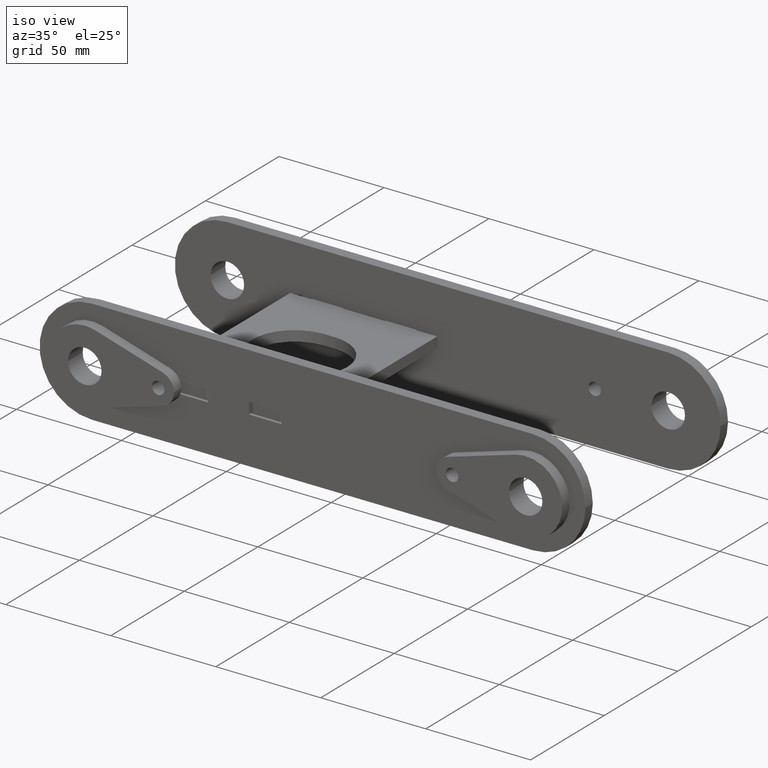
[diagram: clean part render]
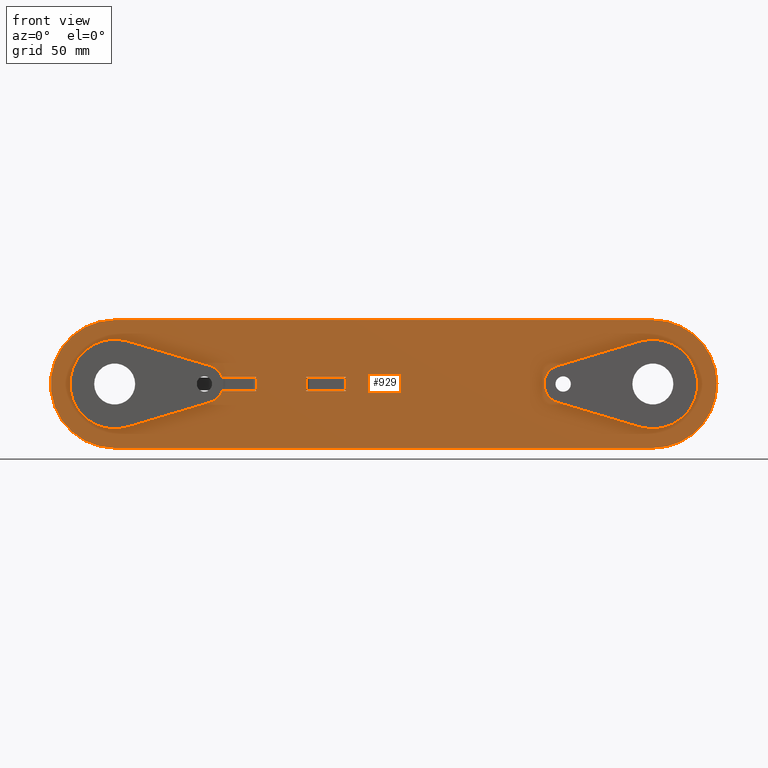
[diagram: tour spotlight — one face highlighted and labeled with its STEP entity id]
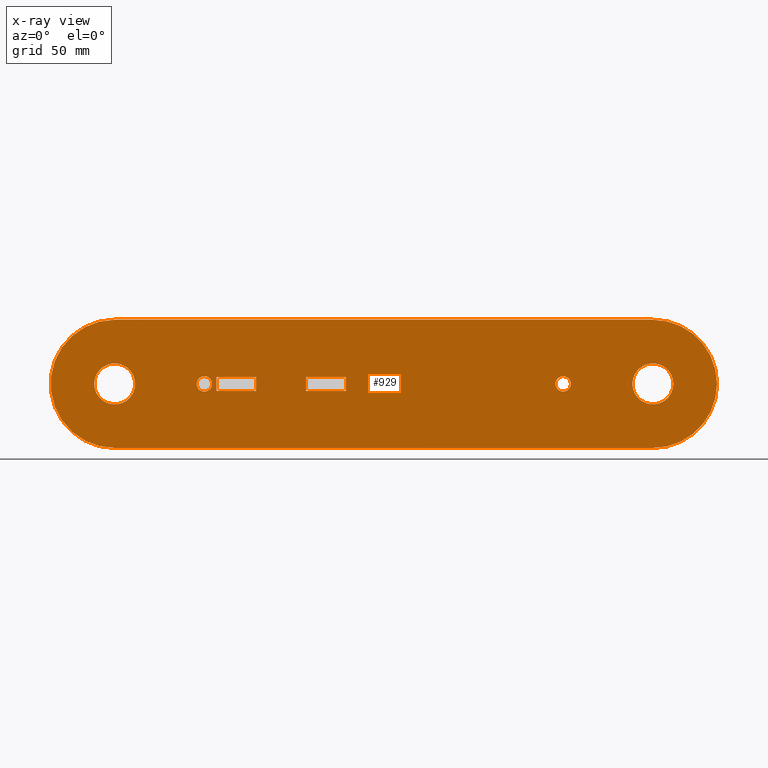
[diagram: x-ray of the same camera — body ghosted, this tour face saturated]
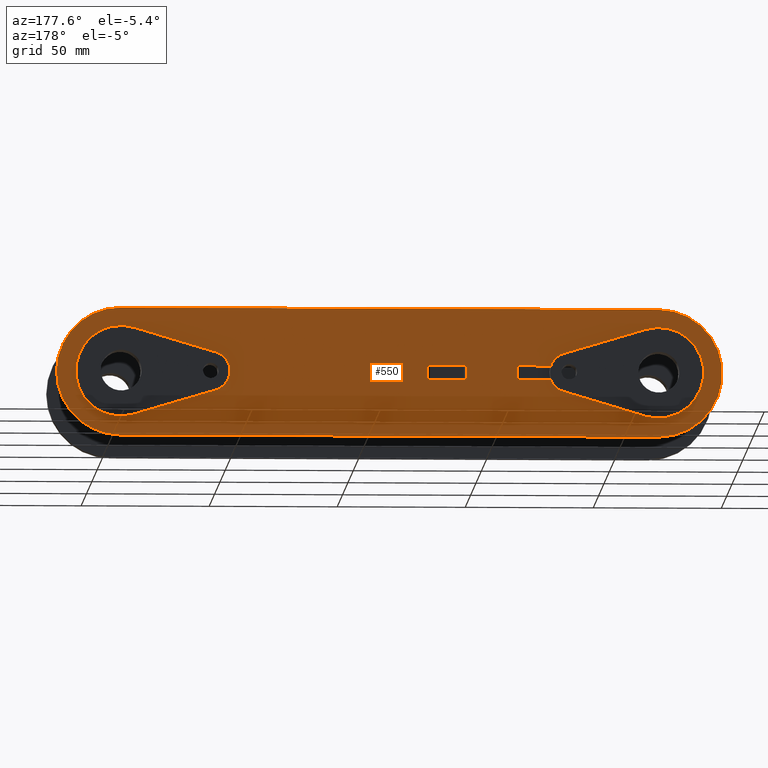
[diagram: tour spotlight — one face highlighted and labeled with its STEP entity id]
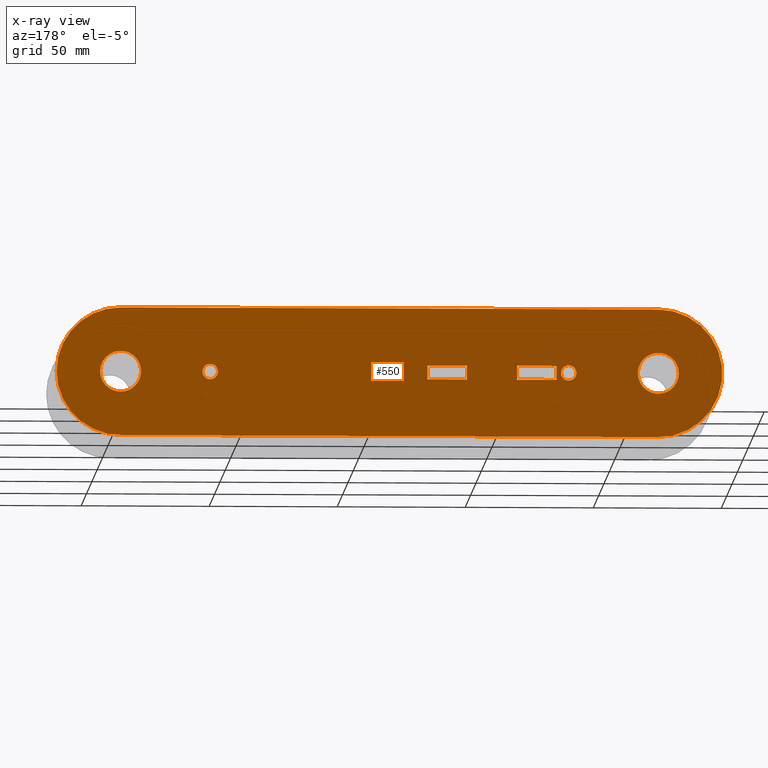
[diagram: x-ray of the same camera — body ghosted, this tour face saturated]
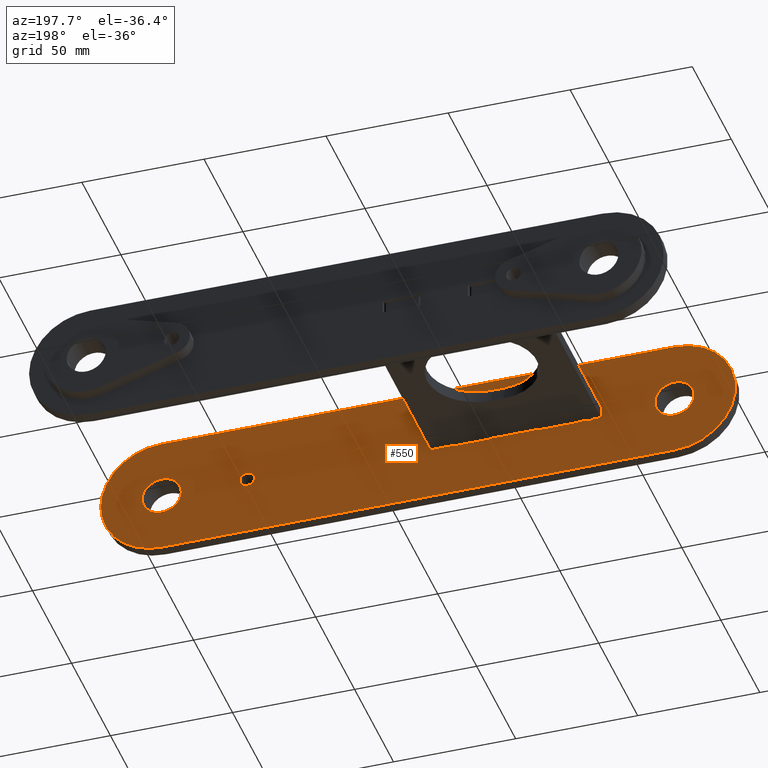
[diagram: tour spotlight — one face highlighted and labeled with its STEP entity id]
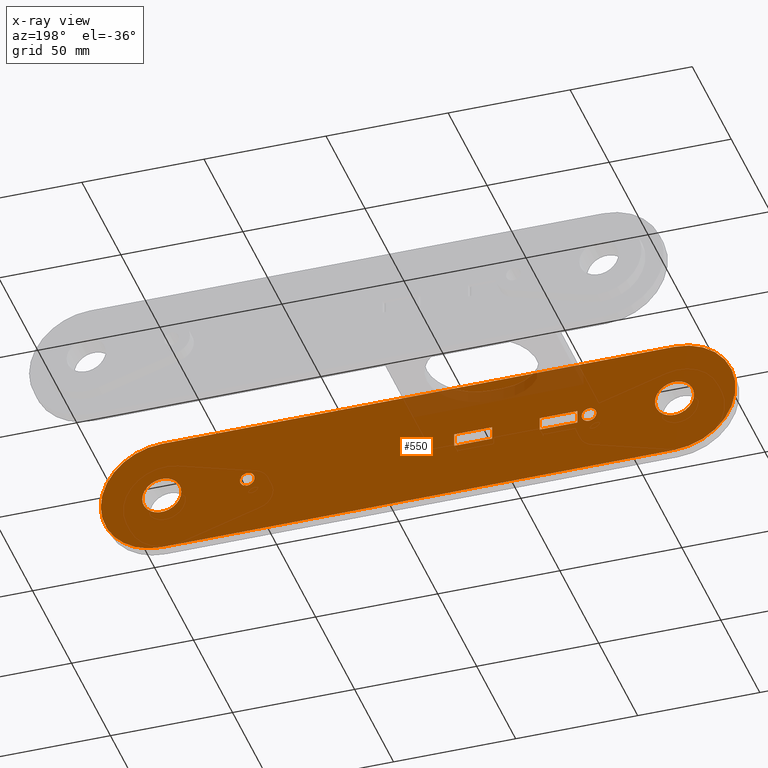
[diagram: x-ray of the same camera — body ghosted, this tour face saturated]
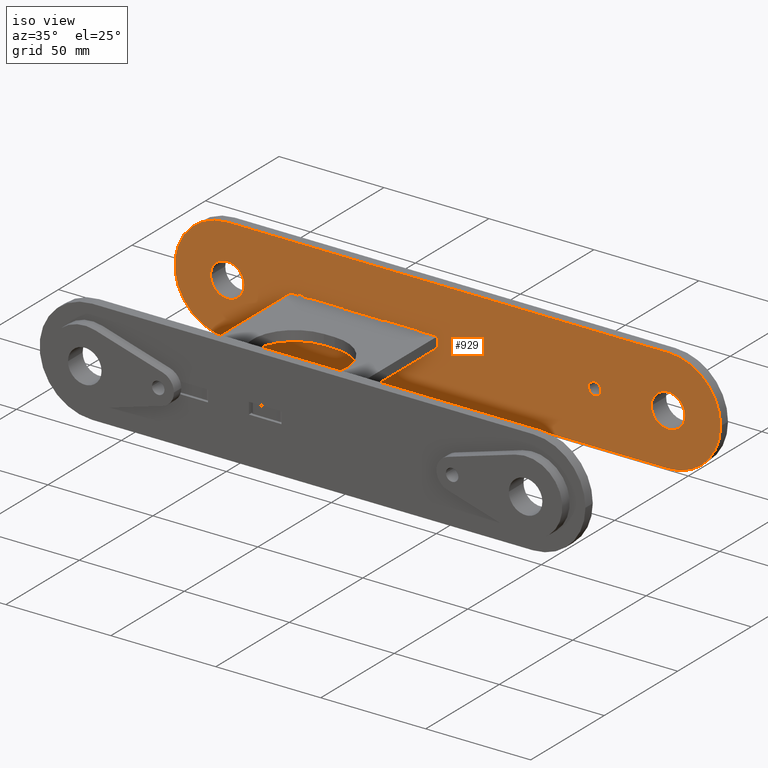
[diagram: tour spotlight — one face highlighted and labeled with its STEP entity id]
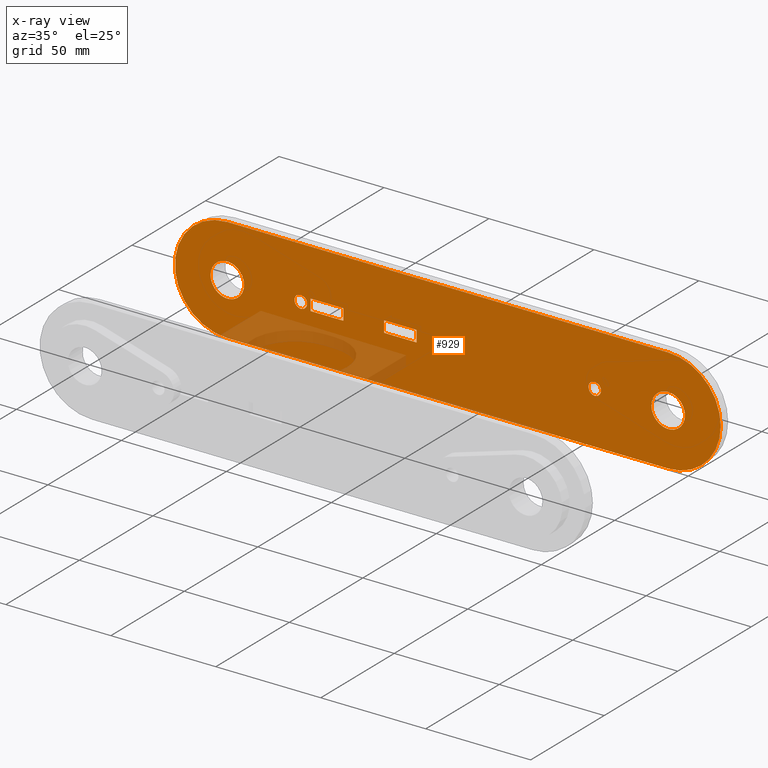
[diagram: x-ray of the same camera — body ghosted, this tour face saturated]
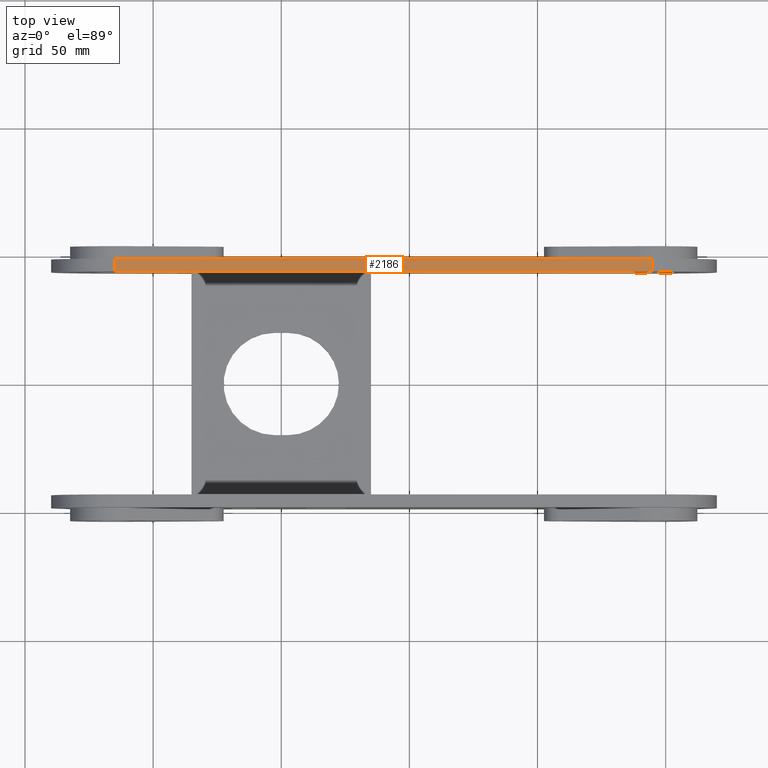
[diagram: tour spotlight — one face highlighted and labeled with its STEP entity id]
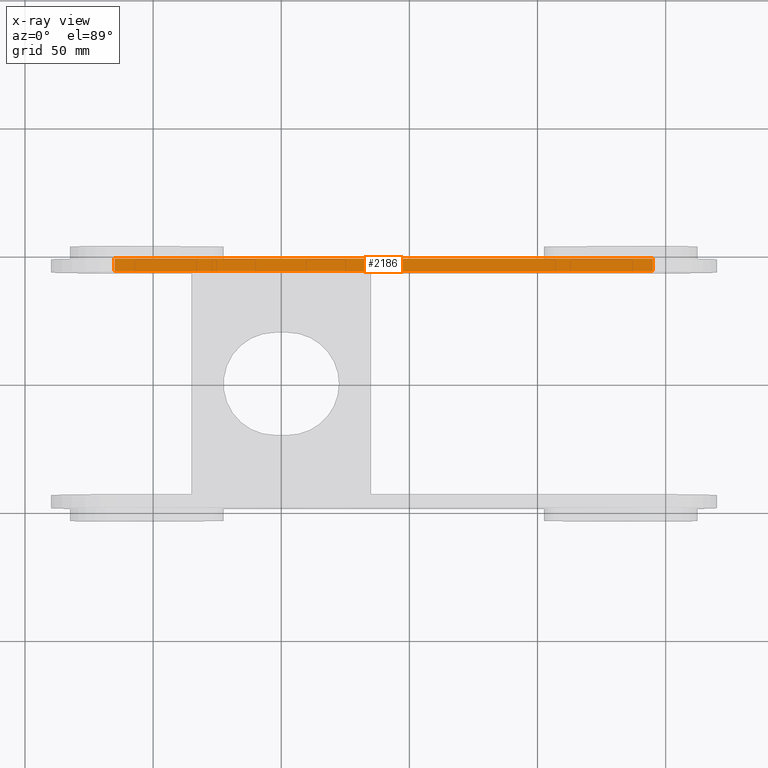
[diagram: x-ray of the same camera — body ghosted, this tour face saturated]
A machine part: a face-by-face anatomy tour. The part has 125 B-rep faces; the first image is the clean iso view, then the 5 largest visible faces are spotlighted one at a time (largest first), each with its STEP entity span.

Face 1 — front view, entity #929. An x-ray twin of the same camera follows (body ghosted, this face saturated) — the face is partly hidden behind the body. In plain terms, the highlighted planar face has unit normal (-0, -1, 0).
Definition (entity closure, byte-faithful):
#12 = CARTESIAN_POINT ( 'NONE',  ( 130.0000000000000284, 3.857637417314161584E-14, 0.000000000000000000 ) ) ;
#58 = EDGE_CURVE ( 'NONE', #2549, #1059, #1194, .T. ) ;
#65 = CIRCLE ( 'NONE', #2447, 8.000000000000007105 ) ;
#104 = DIRECTION ( 'NONE',  ( 1.000000000000000000, 0.000000000000000000, 0.000000000000000000 ) ) ;
#107 = DIRECTION ( 'NONE',  ( 1.000000000000000000, 0.000000000000000000, 0.000000000000000000 ) ) ;
#112 = CARTESIAN_POINT ( 'NONE',  ( -65.29999999999999716, 2.750000000000000888, 0.000000000000000000 ) ) ;
#113 = DIRECTION ( 'NONE',  ( -1.000000000000000000, 2.797941090285172713E-17, -0.000000000000000000 ) ) ;
#123 = VERTEX_POINT ( 'NONE', #845 ) ;
#132 = DIRECTION ( 'NONE',  ( 1.000000000000000000, 0.000000000000000000, 0.000000000000000000 ) ) ;
#141 = CARTESIAN_POINT ( 'NONE',  ( -69.99999999999998579, 0.000000000000000000, 0.000000000000000000 ) ) ;
#144 = CARTESIAN_POINT ( 'NONE',  ( -14.80000000000000071, -2.749999999999998668, 0.000000000000000000 ) ) ;
#147 = VERTEX_POINT ( 'NONE', #1078 ) ;
#163 = LINE ( 'NONE', #144, #1952 ) ;
#167 = CARTESIAN_POINT ( 'NONE',  ( -49.79999999999999716, -2.749999999999998668, 0.000000000000000000 ) ) ;
#176 = PLANE ( 'NONE',  #483 ) ;
#200 = AXIS2_PLACEMENT_3D ( 'NONE', #2119, #1780, #684 ) ;
#207 = CIRCLE ( 'NONE', #2181, 3.000000000000002665 ) ;
#228 = VERTEX_POINT ( 'NONE', #669 ) ;
#229 = EDGE_LOOP ( 'NONE', ( #2703, #1018, #309, #799, #2250 ) ) ;
#235 = EDGE_CURVE ( 'NONE', #948, #1108, #1359, .T. ) ;
#237 = CARTESIAN_POINT ( 'NONE',  ( -30.29999999999999361, -2.749999999999998668, 0.000000000000000000 ) ) ;
#250 = DIRECTION ( 'NONE',  ( -1.000000000000000000, -0.000000000000000000, -0.000000000000000000 ) ) ;
#276 = DIRECTION ( 'NONE',  ( 1.000000000000000000, 0.000000000000000000, 0.000000000000000000 ) ) ;
#279 = CARTESIAN_POINT ( 'NONE',  ( -112.9999999999999858, 9.797174393178845379E-16, 0.000000000000000000 ) ) ;
#309 = ORIENTED_EDGE ( 'NONE', *, *, #235, .T. ) ;
#320 = EDGE_CURVE ( 'NONE', #1489, #656, #795, .T. ) ;
#331 = VERTEX_POINT ( 'NONE', #279 ) ;
#345 = VERTEX_POINT ( 'NONE', #2377 ) ;
#371 = CARTESIAN_POINT ( 'NONE',  ( 104.9999999999999858, 25.00000000000008171, 0.000000000000000000 ) ) ;
#376 = FACE_BOUND ( 'NONE', #2658, .T. ) ;
#388 = CARTESIAN_POINT ( 'NONE',  ( -104.9999999999999858, -25.00000000000004263, 0.000000000000000000 ) ) ;
#396 = EDGE_CURVE ( 'NONE', #1108, #473, #2358, .T. ) ;
#398 = EDGE_CURVE ( 'NONE', #2587, #2549, #2231, .T. ) ;
#434 = AXIS2_PLACEMENT_3D ( 'NONE', #1370, #2029, #104 ) ;
#457 = CARTESIAN_POINT ( 'NONE',  ( -65.29999999999999716, 2.750000000000000888, 0.000000000000000000 ) ) ;
#470 = DIRECTION ( 'NONE',  ( 0.000000000000000000, 0.000000000000000000, 1.000000000000000000 ) ) ;
#473 = VERTEX_POINT ( 'NONE', #371 ) ;
#483 = AXIS2_PLACEMENT_3D ( 'NONE', #1031, #814, #2748 ) ;
#485 = EDGE_CURVE ( 'NONE', #331, #147, #65, .T. ) ;
#486 = DIRECTION ( 'NONE',  ( 0.000000000000000000, 0.000000000000000000, 1.000000000000000000 ) ) ;
#520 = CARTESIAN_POINT ( 'NONE',  ( 96.99999999999997158, 3.955609161245950334E-14, 0.000000000000000000 ) ) ;
#525 = CIRCLE ( 'NONE', #2720, 25.00000000000004974 ) ;
#532 = EDGE_CURVE ( 'NONE', #1732, #1782, #1096, .T. ) ;
#547 = DIRECTION ( 'NONE',  ( 1.000000000000000000, 2.797941090285172713E-17, 0.000000000000000000 ) ) ;
#562 = EDGE_LOOP ( 'NONE', ( #2532, #2045 ) ) ;
#595 = DIRECTION ( 'NONE',  ( -1.000000000000000000, -1.817329355785226926E-16, -0.000000000000000000 ) ) ;
#601 = CARTESIAN_POINT ( 'NONE',  ( 66.99999999999997158, 3.673940397442076138E-16, 0.000000000000000000 ) ) ;
#614 = VECTOR ( 'NONE', #107, 1000.000000000000000 ) ;
#656 = VERTEX_POINT ( 'NONE', #1273 ) ;
#661 = VERTEX_POINT ( 'NONE', #2752 ) ;
#666 = CARTESIAN_POINT ( 'NONE',  ( -65.29999999999999716, -2.749999999999998224, 0.000000000000000000 ) ) ;
#669 = CARTESIAN_POINT ( 'NONE',  ( -104.9999999999999858, 25.00000000000004263, 0.000000000000000000 ) ) ;
#682 = LINE ( 'NONE', #237, #2370 ) ;
#684 = DIRECTION ( 'NONE',  ( 1.000000000000000000, 0.000000000000000000, 0.000000000000000000 ) ) ;
#694 = LINE ( 'NONE', #666, #890 ) ;
#734 = ORIENTED_EDGE ( 'NONE', *, *, #2208, .F. ) ;
#739 = ORIENTED_EDGE ( 'NONE', *, *, #58, .T. ) ;
#757 = AXIS2_PLACEMENT_3D ( 'NONE', #2390, #470, #276 ) ;
#765 = DIRECTION ( 'NONE',  ( 1.000000000000000000, 0.000000000000000000, 0.000000000000000000 ) ) ;
#771 = DIRECTION ( 'NONE',  ( 0.000000000000000000, 0.000000000000000000, 1.000000000000000000 ) ) ;
#781 = EDGE_CURVE ( 'NONE', #1014, #1435, #1579, .T. ) ;
#795 = CIRCLE ( 'NONE', #1504, 3.000000000000002665 ) ;
#799 = ORIENTED_EDGE ( 'NONE', *, *, #396, .T. ) ;
#809 = AXIS2_PLACEMENT_3D ( 'NONE', #1828, #771, #132 ) ;
#814 = DIRECTION ( 'NONE',  ( 0.000000000000000000, 0.000000000000000000, 1.000000000000000000 ) ) ;
#827 = CARTESIAN_POINT ( 'NONE',  ( -69.99999999999998579, 0.000000000000000000, 0.000000000000000000 ) ) ;
#845 = CARTESIAN_POINT ( 'NONE',  ( -65.29999999999999716, -2.749999999999998224, 0.000000000000000000 ) ) ;
#890 = VECTOR ( 'NONE', #2176, 1000.000000000000000 ) ;
#917 = EDGE_CURVE ( 'NONE', #1059, #1324, #163, .T. ) ;
#929 = ADVANCED_FACE ( 'NONE', ( #1876, #985, #1408, #376, #2719, #970, #1890 ), #176, .T. ) ;
#948 = VERTEX_POINT ( 'NONE', #1465 ) ;
#949 = EDGE_CURVE ( 'NONE', #2381, #345, #207, .T. ) ;
#955 = CARTESIAN_POINT ( 'NONE',  ( -72.99999999999998579, 3.673940397442076138E-16, 0.000000000000000000 ) ) ;
#970 = FACE_BOUND ( 'NONE', #2393, .T. ) ;
#985 = FACE_BOUND ( 'NONE', #2744, .T. ) ;
#996 = DIRECTION ( 'NONE',  ( 0.000000000000000000, 0.000000000000000000, 1.000000000000000000 ) ) ;
#999 = CARTESIAN_POINT ( 'NONE',  ( -104.9999999999999858, 0.000000000000000000, 0.000000000000000000 ) ) ;
#1014 = VERTEX_POINT ( 'NONE', #112 ) ;
#1018 = ORIENTED_EDGE ( 'NONE', *, *, #1517, .T. ) ;
#1031 = CARTESIAN_POINT ( 'NONE',  ( -104.9999999999999858, 0.000000000000000000, 0.000000000000000000 ) ) ;
#1038 = ORIENTED_EDGE ( 'NONE', *, *, #2225, .T. ) ;
#1058 = DIRECTION ( 'NONE',  ( 0.000000000000000000, 0.000000000000000000, 1.000000000000000000 ) ) ;
#1059 = VERTEX_POINT ( 'NONE', #2167 ) ;
#1063 = ORIENTED_EDGE ( 'NONE', *, *, #1574, .F. ) ;
#1078 = CARTESIAN_POINT ( 'NONE',  ( -96.99999999999997158, 0.000000000000000000, 0.000000000000000000 ) ) ;
#1096 = CIRCLE ( 'NONE', #434, 8.000000000000007105 ) ;
#1108 = VERTEX_POINT ( 'NONE', #12 ) ;
#1121 = ORIENTED_EDGE ( 'NONE', *, *, #398, .T. ) ;
#1145 = DIRECTION ( 'NONE',  ( 1.000000000000000000, 0.000000000000000000, 0.000000000000000000 ) ) ;
#1157 = CARTESIAN_POINT ( 'NONE',  ( -65.29999999999999716, -2.749999999999998224, 0.000000000000000000 ) ) ;
#1162 = CARTESIAN_POINT ( 'NONE',  ( -30.29999999999999361, -2.749999999999998668, 0.000000000000000000 ) ) ;
#1194 = LINE ( 'NONE', #2463, #614 ) ;
#1238 = VECTOR ( 'NONE', #547, 1000.000000000000000 ) ;
#1240 = DIRECTION ( 'NONE',  ( 1.000000000000000000, 1.817329355785226926E-16, 0.000000000000000000 ) ) ;
#1257 = ORIENTED_EDGE ( 'NONE', *, *, #1586, .T. ) ;
#1273 = CARTESIAN_POINT ( 'NONE',  ( 72.99999999999998579, 0.000000000000000000, 0.000000000000000000 ) ) ;
#1302 = CARTESIAN_POINT ( 'NONE',  ( -49.79999999999999716, -2.749999999999998668, 0.000000000000000000 ) ) ;
#1321 = DIRECTION ( 'NONE',  ( 1.000000000000000000, 0.000000000000000000, 0.000000000000000000 ) ) ;
#1324 = VERTEX_POINT ( 'NONE', #2197 ) ;
#1330 = EDGE_CURVE ( 'NONE', #228, #661, #525, .T. ) ;
#1331 = DIRECTION ( 'NONE',  ( 1.000000000000000000, 0.000000000000000000, 0.000000000000000000 ) ) ;
#1333 = ORIENTED_EDGE ( 'NONE', *, *, #532, .F. ) ;
#1359 = CIRCLE ( 'NONE', #200, 25.00000000000004974 ) ;
#1370 = CARTESIAN_POINT ( 'NONE',  ( 104.9999999999999858, 3.857637417314161584E-14, 0.000000000000000000 ) ) ;
#1408 = FACE_BOUND ( 'NONE', #1844, .T. ) ;
#1431 = CARTESIAN_POINT ( 'NONE',  ( 112.9999999999999858, 3.857637417314161584E-14, 0.000000000000000000 ) ) ;
#1435 = VERTEX_POINT ( 'NONE', #2687 ) ;
#1453 = EDGE_CURVE ( 'NONE', #345, #2381, #1781, .T. ) ;
#1465 = CARTESIAN_POINT ( 'NONE',  ( 104.9999999999999858, -25.00000000000000355, 0.000000000000000000 ) ) ;
#1489 = VERTEX_POINT ( 'NONE', #601 ) ;
#1504 = AXIS2_PLACEMENT_3D ( 'NONE', #2004, #2215, #1145 ) ;
#1517 = EDGE_CURVE ( 'NONE', #661, #948, #2097, .T. ) ;
#1529 = DIRECTION ( 'NONE',  ( -0.000000000000000000, -1.000000000000000000, -0.000000000000000000 ) ) ;
#1574 = EDGE_CURVE ( 'NONE', #656, #1489, #2680, .T. ) ;
#1579 = LINE ( 'NONE', #457, #1238 ) ;
#1586 = EDGE_CURVE ( 'NONE', #123, #1014, #694, .T. ) ;
#1600 = DIRECTION ( 'NONE',  ( 0.000000000000000000, 0.000000000000000000, 1.000000000000000000 ) ) ;
#1603 = DIRECTION ( 'NONE',  ( 0.000000000000000000, 0.000000000000000000, 1.000000000000000000 ) ) ;
#1633 = DIRECTION ( 'NONE',  ( -0.000000000000000000, -1.000000000000000000, -0.000000000000000000 ) ) ;
#1645 = EDGE_CURVE ( 'NONE', #1435, #1859, #1737, .T. ) ;
#1648 = DIRECTION ( 'NONE',  ( 1.000000000000000000, 0.000000000000000000, 0.000000000000000000 ) ) ;
#1651 = VECTOR ( 'NONE', #1240, 1000.000000000000000 ) ;
#1658 = ORIENTED_EDGE ( 'NONE', *, *, #1645, .T. ) ;
#1662 = EDGE_CURVE ( 'NONE', #1324, #2587, #682, .T. ) ;
#1668 = CARTESIAN_POINT ( 'NONE',  ( -104.9999999999999858, 25.00000000000004263, 0.000000000000000000 ) ) ;
#1732 = VERTEX_POINT ( 'NONE', #520 ) ;
#1737 = LINE ( 'NONE', #1302, #2280 ) ;
#1739 = VECTOR ( 'NONE', #113, 1000.000000000000000 ) ;
#1754 = CARTESIAN_POINT ( 'NONE',  ( -104.9999999999999858, 0.000000000000000000, 0.000000000000000000 ) ) ;
#1779 = CIRCLE ( 'NONE', #2142, 8.000000000000007105 ) ;
#1780 = DIRECTION ( 'NONE',  ( 0.000000000000000000, 0.000000000000000000, 1.000000000000000000 ) ) ;
#1781 = CIRCLE ( 'NONE', #1918, 3.000000000000002665 ) ;
#1782 = VERTEX_POINT ( 'NONE', #1431 ) ;
#1817 = DIRECTION ( 'NONE',  ( 1.000000000000000000, 0.000000000000000000, 0.000000000000000000 ) ) ;
#1828 = CARTESIAN_POINT ( 'NONE',  ( 104.9999999999999858, 3.857637417314161584E-14, 0.000000000000000000 ) ) ;
#1844 = EDGE_LOOP ( 'NONE', ( #1257, #1909, #1658, #1038 ) ) ;
#1859 = VERTEX_POINT ( 'NONE', #167 ) ;
#1876 = FACE_BOUND ( 'NONE', #562, .T. ) ;
#1890 = FACE_OUTER_BOUND ( 'NONE', #229, .T. ) ;
#1891 = DIRECTION ( 'NONE',  ( 1.000000000000000000, 0.000000000000000000, 0.000000000000000000 ) ) ;
#1909 = ORIENTED_EDGE ( 'NONE', *, *, #781, .T. ) ;
#1916 = EDGE_CURVE ( 'NONE', #473, #228, #2750, .T. ) ;
#1918 = AXIS2_PLACEMENT_3D ( 'NONE', #141, #996, #765 ) ;
#1952 = VECTOR ( 'NONE', #1633, 1000.000000000000000 ) ;
#1998 = ORIENTED_EDGE ( 'NONE', *, *, #1662, .T. ) ;
#2004 = CARTESIAN_POINT ( 'NONE',  ( 69.99999999999998579, 0.000000000000000000, 0.000000000000000000 ) ) ;
#2029 = DIRECTION ( 'NONE',  ( 0.000000000000000000, 0.000000000000000000, 1.000000000000000000 ) ) ;
#2045 = ORIENTED_EDGE ( 'NONE', *, *, #949, .F. ) ;
#2083 = ORIENTED_EDGE ( 'NONE', *, *, #320, .F. ) ;
#2097 = LINE ( 'NONE', #388, #1651 ) ;
#2119 = CARTESIAN_POINT ( 'NONE',  ( 104.9999999999999858, 3.857637417314161584E-14, 0.000000000000000000 ) ) ;
#2142 = AXIS2_PLACEMENT_3D ( 'NONE', #999, #1058, #1891 ) ;
#2167 = CARTESIAN_POINT ( 'NONE',  ( -14.80000000000000782, 2.750000000000001332, 0.000000000000000000 ) ) ;
#2176 = DIRECTION ( 'NONE',  ( 0.000000000000000000, 1.000000000000000000, 0.000000000000000000 ) ) ;
#2181 = AXIS2_PLACEMENT_3D ( 'NONE', #827, #2704, #1648 ) ;
#2197 = CARTESIAN_POINT ( 'NONE',  ( -14.80000000000000071, -2.749999999999998668, 0.000000000000000000 ) ) ;
#2208 = EDGE_CURVE ( 'NONE', #1782, #1732, #2281, .T. ) ;
#2215 = DIRECTION ( 'NONE',  ( 0.000000000000000000, 0.000000000000000000, 1.000000000000000000 ) ) ;
#2225 = EDGE_CURVE ( 'NONE', #1859, #123, #2241, .T. ) ;
#2231 = LINE ( 'NONE', #1162, #2717 ) ;
#2241 = LINE ( 'NONE', #1157, #1739 ) ;
#2250 = ORIENTED_EDGE ( 'NONE', *, *, #1916, .T. ) ;
#2280 = VECTOR ( 'NONE', #1529, 1000.000000000000000 ) ;
#2281 = CIRCLE ( 'NONE', #809, 8.000000000000007105 ) ;
#2303 = ORIENTED_EDGE ( 'NONE', *, *, #917, .T. ) ;
#2308 = ORIENTED_EDGE ( 'NONE', *, *, #2452, .F. ) ;
#2328 = VECTOR ( 'NONE', #595, 1000.000000000000000 ) ;
#2358 = CIRCLE ( 'NONE', #2668, 25.00000000000004974 ) ;
#2368 = CARTESIAN_POINT ( 'NONE',  ( -30.29999999999999361, -2.749999999999998668, 0.000000000000000000 ) ) ;
#2370 = VECTOR ( 'NONE', #250, 1000.000000000000000 ) ;
#2377 = CARTESIAN_POINT ( 'NONE',  ( -66.99999999999997158, 0.000000000000000000, 0.000000000000000000 ) ) ;
#2381 = VERTEX_POINT ( 'NONE', #955 ) ;
#2384 = CARTESIAN_POINT ( 'NONE',  ( -30.29999999999999361, 2.750000000000001332, 0.000000000000000000 ) ) ;
#2390 = CARTESIAN_POINT ( 'NONE',  ( 69.99999999999998579, 0.000000000000000000, 0.000000000000000000 ) ) ;
#2393 = EDGE_LOOP ( 'NONE', ( #2308, #2749 ) ) ;
#2404 = CARTESIAN_POINT ( 'NONE',  ( 104.9999999999999858, 3.857637417314161584E-14, 0.000000000000000000 ) ) ;
#2447 = AXIS2_PLACEMENT_3D ( 'NONE', #2475, #1600, #1817 ) ;
#2452 = EDGE_CURVE ( 'NONE', #147, #331, #1779, .T. ) ;
#2463 = CARTESIAN_POINT ( 'NONE',  ( -30.29999999999999361, 2.750000000000001332, 0.000000000000000000 ) ) ;
#2475 = CARTESIAN_POINT ( 'NONE',  ( -104.9999999999999858, 0.000000000000000000, 0.000000000000000000 ) ) ;
#2532 = ORIENTED_EDGE ( 'NONE', *, *, #1453, .F. ) ;
#2549 = VERTEX_POINT ( 'NONE', #2384 ) ;
#2587 = VERTEX_POINT ( 'NONE', #2368 ) ;
#2615 = EDGE_LOOP ( 'NONE', ( #734, #1333 ) ) ;
#2658 = EDGE_LOOP ( 'NONE', ( #1121, #739, #2303, #1998 ) ) ;
#2668 = AXIS2_PLACEMENT_3D ( 'NONE', #2404, #486, #1331 ) ;
#2680 = CIRCLE ( 'NONE', #757, 3.000000000000002665 ) ;
#2681 = DIRECTION ( 'NONE',  ( 0.000000000000000000, 1.000000000000000000, 0.000000000000000000 ) ) ;
#2687 = CARTESIAN_POINT ( 'NONE',  ( -49.79999999999999716, 2.750000000000001332, 0.000000000000000000 ) ) ;
#2703 = ORIENTED_EDGE ( 'NONE', *, *, #1330, .T. ) ;
#2704 = DIRECTION ( 'NONE',  ( 0.000000000000000000, 0.000000000000000000, 1.000000000000000000 ) ) ;
#2717 = VECTOR ( 'NONE', #2681, 1000.000000000000000 ) ;
#2719 = FACE_BOUND ( 'NONE', #2615, .T. ) ;
#2720 = AXIS2_PLACEMENT_3D ( 'NONE', #1754, #1603, #1321 ) ;
#2744 = EDGE_LOOP ( 'NONE', ( #1063, #2083 ) ) ;
#2748 = DIRECTION ( 'NONE',  ( 1.000000000000000000, 0.000000000000000000, -0.000000000000000000 ) ) ;
#2749 = ORIENTED_EDGE ( 'NONE', *, *, #485, .F. ) ;
#2750 = LINE ( 'NONE', #1668, #2328 ) ;
#2752 = CARTESIAN_POINT ( 'NONE',  ( -104.9999999999999858, -25.00000000000004263, 0.000000000000000000 ) ) ;

Face 2 — auxiliary view, entity #550. An x-ray twin of the same camera follows (body ghosted, this face saturated) — the face is partly hidden behind the body. In plain terms, the highlighted planar face has unit normal (0, -1, 0).
Definition (entity closure, byte-faithful):
#11 = VERTEX_POINT ( 'NONE', #543 ) ;
#20 = LINE ( 'NONE', #1379, #572 ) ;
#41 = VERTEX_POINT ( 'NONE', #2081 ) ;
#46 = CARTESIAN_POINT ( 'NONE',  ( -104.9999999999999858, 25.00000000000004263, -5.000000000000000000 ) ) ;
#72 = CARTESIAN_POINT ( 'NONE',  ( -49.79999999999999716, -2.749999999999998668, -5.000000000000000000 ) ) ;
#87 = DIRECTION ( 'NONE',  ( 1.000000000000000000, 0.000000000000000000, 0.000000000000000000 ) ) ;
#124 = VECTOR ( 'NONE', #1678, 1000.000000000000000 ) ;
#156 = AXIS2_PLACEMENT_3D ( 'NONE', #1572, #722, #499 ) ;
#161 = VECTOR ( 'NONE', #2593, 1000.000000000000000 ) ;
#171 = VERTEX_POINT ( 'NONE', #860 ) ;
#205 = DIRECTION ( 'NONE',  ( 0.000000000000000000, 0.000000000000000000, 1.000000000000000000 ) ) ;
#223 = DIRECTION ( 'NONE',  ( -0.000000000000000000, -1.000000000000000000, -0.000000000000000000 ) ) ;
#226 = VERTEX_POINT ( 'NONE', #870 ) ;
#236 = DIRECTION ( 'NONE',  ( 0.000000000000000000, 0.000000000000000000, 1.000000000000000000 ) ) ;
#249 = VECTOR ( 'NONE', #2111, 1000.000000000000000 ) ;
#257 = DIRECTION ( 'NONE',  ( 1.000000000000000000, 0.000000000000000000, 0.000000000000000000 ) ) ;
#266 = CARTESIAN_POINT ( 'NONE',  ( 72.99999999999998579, 0.000000000000000000, -5.000000000000000000 ) ) ;
#270 = ORIENTED_EDGE ( 'NONE', *, *, #1885, .F. ) ;
#271 = DIRECTION ( 'NONE',  ( 1.000000000000000000, 0.000000000000000000, 0.000000000000000000 ) ) ;
#300 = EDGE_CURVE ( 'NONE', #633, #1536, #1721, .T. ) ;
#301 = CARTESIAN_POINT ( 'NONE',  ( -104.9999999999999858, -25.00000000000004263, -5.000000000000000000 ) ) ;
#307 = CARTESIAN_POINT ( 'NONE',  ( 96.99999999999997158, 3.955609161245950334E-14, -5.000000000000000000 ) ) ;
#363 = VERTEX_POINT ( 'NONE', #898 ) ;
#380 = CARTESIAN_POINT ( 'NONE',  ( 112.9999999999999858, 3.857637417314161584E-14, -5.000000000000000000 ) ) ;
#401 = CARTESIAN_POINT ( 'NONE',  ( -104.9999999999999858, 0.000000000000000000, -5.000000000000000000 ) ) ;
#443 = EDGE_CURVE ( 'NONE', #363, #900, #2314, .T. ) ;
#452 = CARTESIAN_POINT ( 'NONE',  ( -104.9999999999999858, 0.000000000000000000, -5.000000000000000000 ) ) ;
#489 = DIRECTION ( 'NONE',  ( 0.000000000000000000, 0.000000000000000000, 1.000000000000000000 ) ) ;
#499 = DIRECTION ( 'NONE',  ( 1.000000000000000000, 0.000000000000000000, 0.000000000000000000 ) ) ;
#502 = VERTEX_POINT ( 'NONE', #307 ) ;
#543 = CARTESIAN_POINT ( 'NONE',  ( -65.29999999999999716, -2.749999999999998224, -5.000000000000000000 ) ) ;
#550 = ADVANCED_FACE ( 'NONE', ( #962, #1615, #2258, #2049, #2334, #648, #1883 ), #858, .F. ) ;
#569 = EDGE_LOOP ( 'NONE', ( #2480, #1243 ) ) ;
#572 = VECTOR ( 'NONE', #881, 1000.000000000000000 ) ;
#584 = ORIENTED_EDGE ( 'NONE', *, *, #690, .F. ) ;
#599 = ORIENTED_EDGE ( 'NONE', *, *, #839, .F. ) ;
#618 = DIRECTION ( 'NONE',  ( 0.000000000000000000, 0.000000000000000000, 1.000000000000000000 ) ) ;
#619 = AXIS2_PLACEMENT_3D ( 'NONE', #2161, #236, #87 ) ;
#621 = VERTEX_POINT ( 'NONE', #1251 ) ;
#628 = VECTOR ( 'NONE', #223, 1000.000000000000000 ) ;
#633 = VERTEX_POINT ( 'NONE', #1446 ) ;
#637 = DIRECTION ( 'NONE',  ( 0.000000000000000000, 0.000000000000000000, 1.000000000000000000 ) ) ;
#643 = CARTESIAN_POINT ( 'NONE',  ( -104.9999999999999858, -25.00000000000004263, -5.000000000000000000 ) ) ;
#646 = LINE ( 'NONE', #1919, #124 ) ;
#648 = FACE_BOUND ( 'NONE', #2282, .T. ) ;
#659 = VECTOR ( 'NONE', #680, 1000.000000000000000 ) ;
#668 = AXIS2_PLACEMENT_3D ( 'NONE', #452, #702, #257 ) ;
#680 = DIRECTION ( 'NONE',  ( 0.000000000000000000, 1.000000000000000000, 0.000000000000000000 ) ) ;
#689 = LINE ( 'NONE', #643, #2228 ) ;
#690 = EDGE_CURVE ( 'NONE', #1007, #808, #1396, .T. ) ;
#702 = DIRECTION ( 'NONE',  ( 0.000000000000000000, 0.000000000000000000, 1.000000000000000000 ) ) ;
#704 = EDGE_LOOP ( 'NONE', ( #1969, #584, #1525, #1138 ) ) ;
#722 = DIRECTION ( 'NONE',  ( 0.000000000000000000, 0.000000000000000000, 1.000000000000000000 ) ) ;
#728 = LINE ( 'NONE', #2224, #161 ) ;
#753 = EDGE_CURVE ( 'NONE', #1146, #1007, #728, .T. ) ;
#759 = VECTOR ( 'NONE', #2300, 1000.000000000000000 ) ;
#763 = ORIENTED_EDGE ( 'NONE', *, *, #964, .T. ) ;
#773 = ORIENTED_EDGE ( 'NONE', *, *, #2535, .F. ) ;
#778 = ORIENTED_EDGE ( 'NONE', *, *, #2120, .F. ) ;
#787 = CARTESIAN_POINT ( 'NONE',  ( -49.79999999999999716, 2.750000000000001332, -5.000000000000000000 ) ) ;
#804 = CARTESIAN_POINT ( 'NONE',  ( 104.9999999999999858, 3.857637417314161584E-14, -5.000000000000000000 ) ) ;
#808 = VERTEX_POINT ( 'NONE', #867 ) ;
#837 = CARTESIAN_POINT ( 'NONE',  ( -65.29999999999999716, -2.749999999999998224, -5.000000000000000000 ) ) ;
#839 = EDGE_CURVE ( 'NONE', #900, #226, #1280, .T. ) ;
#844 = EDGE_LOOP ( 'NONE', ( #876, #2039 ) ) ;
#851 = DIRECTION ( 'NONE',  ( -1.000000000000000000, 2.797941090285172713E-17, -0.000000000000000000 ) ) ;
#856 = EDGE_CURVE ( 'NONE', #41, #1839, #20, .T. ) ;
#858 = PLANE ( 'NONE',  #2218 ) ;
#860 = CARTESIAN_POINT ( 'NONE',  ( -14.80000000000000071, 2.750000000000001332, -5.000000000000000000 ) ) ;
#867 = CARTESIAN_POINT ( 'NONE',  ( -30.29999999999999361, 2.750000000000001332, -5.000000000000000000 ) ) ;
#870 = CARTESIAN_POINT ( 'NONE',  ( 104.9999999999999858, 25.00000000000008171, -5.000000000000000000 ) ) ;
#876 = ORIENTED_EDGE ( 'NONE', *, *, #1865, .T. ) ;
#881 = DIRECTION ( 'NONE',  ( 1.000000000000000000, 2.797941090285172713E-17, 0.000000000000000000 ) ) ;
#898 = CARTESIAN_POINT ( 'NONE',  ( 104.9999999999999858, -25.00000000000000355, -5.000000000000000000 ) ) ;
#900 = VERTEX_POINT ( 'NONE', #2100 ) ;
#961 = EDGE_CURVE ( 'NONE', #621, #989, #2450, .T. ) ;
#962 = FACE_BOUND ( 'NONE', #1704, .T. ) ;
#964 = EDGE_CURVE ( 'NONE', #2278, #2772, #1192, .T. ) ;
#984 = ORIENTED_EDGE ( 'NONE', *, *, #856, .F. ) ;
#988 = EDGE_CURVE ( 'NONE', #808, #171, #2497, .T. ) ;
#989 = VERTEX_POINT ( 'NONE', #1427 ) ;
#993 = EDGE_LOOP ( 'NONE', ( #773, #270, #599, #2386, #1932 ) ) ;
#1007 = VERTEX_POINT ( 'NONE', #2512 ) ;
#1022 = AXIS2_PLACEMENT_3D ( 'NONE', #804, #2090, #1261 ) ;
#1066 = CIRCLE ( 'NONE', #1022, 8.000000000000007105 ) ;
#1083 = DIRECTION ( 'NONE',  ( 1.000000000000000000, 1.817329355785226926E-16, 0.000000000000000000 ) ) ;
#1115 = EDGE_CURVE ( 'NONE', #11, #41, #2139, .T. ) ;
#1138 = ORIENTED_EDGE ( 'NONE', *, *, #1845, .F. ) ;
#1146 = VERTEX_POINT ( 'NONE', #2546 ) ;
#1192 = CIRCLE ( 'NONE', #2317, 3.000000000000002665 ) ;
#1243 = ORIENTED_EDGE ( 'NONE', *, *, #300, .T. ) ;
#1244 = CARTESIAN_POINT ( 'NONE',  ( -104.9999999999999858, 0.000000000000000000, -5.000000000000000000 ) ) ;
#1251 = CARTESIAN_POINT ( 'NONE',  ( -96.99999999999997158, 0.000000000000000000, -5.000000000000000000 ) ) ;
#1261 = DIRECTION ( 'NONE',  ( 1.000000000000000000, 0.000000000000000000, 0.000000000000000000 ) ) ;
#1280 = CIRCLE ( 'NONE', #619, 25.00000000000004974 ) ;
#1290 = VERTEX_POINT ( 'NONE', #72 ) ;
#1295 = ORIENTED_EDGE ( 'NONE', *, *, #2515, .T. ) ;
#1299 = CARTESIAN_POINT ( 'NONE',  ( -49.79999999999999716, -2.749999999999998668, -5.000000000000000000 ) ) ;
#1352 = CARTESIAN_POINT ( 'NONE',  ( -66.99999999999997158, 0.000000000000000000, -5.000000000000000000 ) ) ;
#1377 = CIRCLE ( 'NONE', #1823, 3.000000000000002665 ) ;
#1379 = CARTESIAN_POINT ( 'NONE',  ( -65.29999999999999716, 2.750000000000000888, -5.000000000000000000 ) ) ;
#1394 = EDGE_CURVE ( 'NONE', #502, #1994, #1561, .T. ) ;
#1396 = LINE ( 'NONE', #2251, #659 ) ;
#1427 = CARTESIAN_POINT ( 'NONE',  ( -112.9999999999999858, 9.797174393178845379E-16, -5.000000000000000000 ) ) ;
#1446 = CARTESIAN_POINT ( 'NONE',  ( 66.99999999999997158, 3.673940397442076138E-16, -5.000000000000000000 ) ) ;
#1496 = LINE ( 'NONE', #1705, #759 ) ;
#1510 = DIRECTION ( 'NONE',  ( 0.000000000000000000, 0.000000000000000000, 1.000000000000000000 ) ) ;
#1525 = ORIENTED_EDGE ( 'NONE', *, *, #753, .F. ) ;
#1536 = VERTEX_POINT ( 'NONE', #266 ) ;
#1546 = CARTESIAN_POINT ( 'NONE',  ( 104.9999999999999858, 3.857637417314161584E-14, -5.000000000000000000 ) ) ;
#1558 = VECTOR ( 'NONE', #851, 1000.000000000000000 ) ;
#1561 = CIRCLE ( 'NONE', #2509, 8.000000000000007105 ) ;
#1572 = CARTESIAN_POINT ( 'NONE',  ( 69.99999999999998579, 0.000000000000000000, -5.000000000000000000 ) ) ;
#1595 = AXIS2_PLACEMENT_3D ( 'NONE', #2460, #1802, #1643 ) ;
#1615 = FACE_BOUND ( 'NONE', #569, .T. ) ;
#1643 = DIRECTION ( 'NONE',  ( 1.000000000000000000, 0.000000000000000000, 0.000000000000000000 ) ) ;
#1665 = DIRECTION ( 'NONE',  ( 1.000000000000000000, 0.000000000000000000, 0.000000000000000000 ) ) ;
#1676 = DIRECTION ( 'NONE',  ( 0.000000000000000000, 0.000000000000000000, 1.000000000000000000 ) ) ;
#1678 = DIRECTION ( 'NONE',  ( -0.000000000000000000, -1.000000000000000000, -0.000000000000000000 ) ) ;
#1688 = AXIS2_PLACEMENT_3D ( 'NONE', #2123, #205, #2087 ) ;
#1704 = EDGE_LOOP ( 'NONE', ( #763, #1295 ) ) ;
#1705 = CARTESIAN_POINT ( 'NONE',  ( -104.9999999999999858, 25.00000000000004263, -5.000000000000000000 ) ) ;
#1717 = CARTESIAN_POINT ( 'NONE',  ( 69.99999999999998579, 0.000000000000000000, -5.000000000000000000 ) ) ;
#1721 = CIRCLE ( 'NONE', #156, 3.000000000000002665 ) ;
#1734 = DIRECTION ( 'NONE',  ( 0.000000000000000000, 0.000000000000000000, 1.000000000000000000 ) ) ;
#1741 = CIRCLE ( 'NONE', #1688, 8.000000000000007105 ) ;
#1771 = CARTESIAN_POINT ( 'NONE',  ( -72.99999999999998579, 3.673940397442076138E-16, -5.000000000000000000 ) ) ;
#1802 = DIRECTION ( 'NONE',  ( 0.000000000000000000, 0.000000000000000000, 1.000000000000000000 ) ) ;
#1823 = AXIS2_PLACEMENT_3D ( 'NONE', #1717, #1734, #1973 ) ;
#1826 = CARTESIAN_POINT ( 'NONE',  ( -30.29999999999999361, 2.750000000000001332, -5.000000000000000000 ) ) ;
#1839 = VERTEX_POINT ( 'NONE', #787 ) ;
#1845 = EDGE_CURVE ( 'NONE', #171, #1146, #646, .T. ) ;
#1865 = EDGE_CURVE ( 'NONE', #1994, #502, #1066, .T. ) ;
#1871 = AXIS2_PLACEMENT_3D ( 'NONE', #2141, #1510, #2411 ) ;
#1883 = FACE_OUTER_BOUND ( 'NONE', #993, .T. ) ;
#1885 = EDGE_CURVE ( 'NONE', #226, #2110, #1496, .T. ) ;
#1917 = ORIENTED_EDGE ( 'NONE', *, *, #2433, .T. ) ;
#1919 = CARTESIAN_POINT ( 'NONE',  ( -14.80000000000000071, -2.749999999999998668, -5.000000000000000000 ) ) ;
#1922 = DIRECTION ( 'NONE',  ( 1.000000000000000000, 0.000000000000000000, -0.000000000000000000 ) ) ;
#1932 = ORIENTED_EDGE ( 'NONE', *, *, #2561, .F. ) ;
#1969 = ORIENTED_EDGE ( 'NONE', *, *, #988, .F. ) ;
#1973 = DIRECTION ( 'NONE',  ( 1.000000000000000000, 0.000000000000000000, 0.000000000000000000 ) ) ;
#1981 = CARTESIAN_POINT ( 'NONE',  ( -65.29999999999999716, -2.749999999999998224, -5.000000000000000000 ) ) ;
#1994 = VERTEX_POINT ( 'NONE', #380 ) ;
#2039 = ORIENTED_EDGE ( 'NONE', *, *, #1394, .T. ) ;
#2049 = FACE_BOUND ( 'NONE', #704, .T. ) ;
#2081 = CARTESIAN_POINT ( 'NONE',  ( -65.29999999999999716, 2.750000000000000888, -5.000000000000000000 ) ) ;
#2087 = DIRECTION ( 'NONE',  ( 1.000000000000000000, 0.000000000000000000, 0.000000000000000000 ) ) ;
#2090 = DIRECTION ( 'NONE',  ( 0.000000000000000000, 0.000000000000000000, 1.000000000000000000 ) ) ;
#2095 = EDGE_CURVE ( 'NONE', #1536, #633, #1377, .T. ) ;
#2100 = CARTESIAN_POINT ( 'NONE',  ( 130.0000000000000284, 3.857637417314161584E-14, -5.000000000000000000 ) ) ;
#2110 = VERTEX_POINT ( 'NONE', #46 ) ;
#2111 = DIRECTION ( 'NONE',  ( 0.000000000000000000, 1.000000000000000000, 0.000000000000000000 ) ) ;
#2120 = EDGE_CURVE ( 'NONE', #1839, #1290, #2632, .T. ) ;
#2123 = CARTESIAN_POINT ( 'NONE',  ( -104.9999999999999858, 0.000000000000000000, -5.000000000000000000 ) ) ;
#2133 = AXIS2_PLACEMENT_3D ( 'NONE', #1244, #1676, #1665 ) ;
#2139 = LINE ( 'NONE', #837, #249 ) ;
#2141 = CARTESIAN_POINT ( 'NONE',  ( -69.99999999999998579, 0.000000000000000000, -5.000000000000000000 ) ) ;
#2153 = ORIENTED_EDGE ( 'NONE', *, *, #1115, .F. ) ;
#2161 = CARTESIAN_POINT ( 'NONE',  ( 104.9999999999999858, 3.857637417314161584E-14, -5.000000000000000000 ) ) ;
#2198 = LINE ( 'NONE', #1981, #1558 ) ;
#2218 = AXIS2_PLACEMENT_3D ( 'NONE', #401, #637, #1922 ) ;
#2224 = CARTESIAN_POINT ( 'NONE',  ( -30.29999999999999361, -2.749999999999998668, -5.000000000000000000 ) ) ;
#2228 = VECTOR ( 'NONE', #1083, 1000.000000000000000 ) ;
#2251 = CARTESIAN_POINT ( 'NONE',  ( -30.29999999999999361, -2.749999999999998668, -5.000000000000000000 ) ) ;
#2258 = FACE_BOUND ( 'NONE', #2669, .T. ) ;
#2278 = VERTEX_POINT ( 'NONE', #1352 ) ;
#2282 = EDGE_LOOP ( 'NONE', ( #2435, #1917 ) ) ;
#2300 = DIRECTION ( 'NONE',  ( -1.000000000000000000, -1.817329355785226926E-16, -0.000000000000000000 ) ) ;
#2314 = CIRCLE ( 'NONE', #1595, 25.00000000000004974 ) ;
#2317 = AXIS2_PLACEMENT_3D ( 'NONE', #2533, #618, #2523 ) ;
#2320 = ORIENTED_EDGE ( 'NONE', *, *, #2616, .F. ) ;
#2334 = FACE_BOUND ( 'NONE', #844, .T. ) ;
#2349 = VERTEX_POINT ( 'NONE', #301 ) ;
#2386 = ORIENTED_EDGE ( 'NONE', *, *, #443, .F. ) ;
#2407 = VECTOR ( 'NONE', #2481, 1000.000000000000000 ) ;
#2411 = DIRECTION ( 'NONE',  ( 1.000000000000000000, 0.000000000000000000, 0.000000000000000000 ) ) ;
#2433 = EDGE_CURVE ( 'NONE', #989, #621, #1741, .T. ) ;
#2435 = ORIENTED_EDGE ( 'NONE', *, *, #961, .T. ) ;
#2450 = CIRCLE ( 'NONE', #2133, 8.000000000000007105 ) ;
#2457 = CIRCLE ( 'NONE', #668, 25.00000000000004974 ) ;
#2460 = CARTESIAN_POINT ( 'NONE',  ( 104.9999999999999858, 3.857637417314161584E-14, -5.000000000000000000 ) ) ;
#2480 = ORIENTED_EDGE ( 'NONE', *, *, #2095, .T. ) ;
#2481 = DIRECTION ( 'NONE',  ( 1.000000000000000000, 0.000000000000000000, 0.000000000000000000 ) ) ;
#2497 = LINE ( 'NONE', #1826, #2407 ) ;
#2507 = CIRCLE ( 'NONE', #1871, 3.000000000000002665 ) ;
#2509 = AXIS2_PLACEMENT_3D ( 'NONE', #1546, #489, #271 ) ;
#2512 = CARTESIAN_POINT ( 'NONE',  ( -30.29999999999999361, -2.749999999999998668, -5.000000000000000000 ) ) ;
#2515 = EDGE_CURVE ( 'NONE', #2772, #2278, #2507, .T. ) ;
#2523 = DIRECTION ( 'NONE',  ( 1.000000000000000000, 0.000000000000000000, 0.000000000000000000 ) ) ;
#2533 = CARTESIAN_POINT ( 'NONE',  ( -69.99999999999998579, 0.000000000000000000, -5.000000000000000000 ) ) ;
#2535 = EDGE_CURVE ( 'NONE', #2110, #2349, #2457, .T. ) ;
#2546 = CARTESIAN_POINT ( 'NONE',  ( -14.80000000000000071, -2.749999999999998668, -5.000000000000000000 ) ) ;
#2561 = EDGE_CURVE ( 'NONE', #2349, #363, #689, .T. ) ;
#2593 = DIRECTION ( 'NONE',  ( -1.000000000000000000, -0.000000000000000000, -0.000000000000000000 ) ) ;
#2616 = EDGE_CURVE ( 'NONE', #1290, #11, #2198, .T. ) ;
#2632 = LINE ( 'NONE', #1299, #628 ) ;
#2669 = EDGE_LOOP ( 'NONE', ( #984, #2153, #2320, #778 ) ) ;
#2772 = VERTEX_POINT ( 'NONE', #1771 ) ;

Face 3 — auxiliary view, entity #550. An x-ray twin of the same camera follows (body ghosted, this face saturated) — the face is partly hidden behind the body. In plain terms, the highlighted planar face has unit normal (-0, -1, 0).
Definition (entity closure, byte-faithful):
#11 = VERTEX_POINT ( 'NONE', #543 ) ;
#20 = LINE ( 'NONE', #1379, #572 ) ;
#41 = VERTEX_POINT ( 'NONE', #2081 ) ;
#46 = CARTESIAN_POINT ( 'NONE',  ( -104.9999999999999858, 25.00000000000004263, -5.000000000000000000 ) ) ;
#72 = CARTESIAN_POINT ( 'NONE',  ( -49.79999999999999716, -2.749999999999998668, -5.000000000000000000 ) ) ;
#87 = DIRECTION ( 'NONE',  ( 1.000000000000000000, 0.000000000000000000, 0.000000000000000000 ) ) ;
#124 = VECTOR ( 'NONE', #1678, 1000.000000000000000 ) ;
#156 = AXIS2_PLACEMENT_3D ( 'NONE', #1572, #722, #499 ) ;
#161 = VECTOR ( 'NONE', #2593, 1000.000000000000000 ) ;
#171 = VERTEX_POINT ( 'NONE', #860 ) ;
#205 = DIRECTION ( 'NONE',  ( 0.000000000000000000, 0.000000000000000000, 1.000000000000000000 ) ) ;
#223 = DIRECTION ( 'NONE',  ( -0.000000000000000000, -1.000000000000000000, -0.000000000000000000 ) ) ;
#226 = VERTEX_POINT ( 'NONE', #870 ) ;
#236 = DIRECTION ( 'NONE',  ( 0.000000000000000000, 0.000000000000000000, 1.000000000000000000 ) ) ;
#249 = VECTOR ( 'NONE', #2111, 1000.000000000000000 ) ;
#257 = DIRECTION ( 'NONE',  ( 1.000000000000000000, 0.000000000000000000, 0.000000000000000000 ) ) ;
#266 = CARTESIAN_POINT ( 'NONE',  ( 72.99999999999998579, 0.000000000000000000, -5.000000000000000000 ) ) ;
#270 = ORIENTED_EDGE ( 'NONE', *, *, #1885, .F. ) ;
#271 = DIRECTION ( 'NONE',  ( 1.000000000000000000, 0.000000000000000000, 0.000000000000000000 ) ) ;
#300 = EDGE_CURVE ( 'NONE', #633, #1536, #1721, .T. ) ;
#301 = CARTESIAN_POINT ( 'NONE',  ( -104.9999999999999858, -25.00000000000004263, -5.000000000000000000 ) ) ;
#307 = CARTESIAN_POINT ( 'NONE',  ( 96.99999999999997158, 3.955609161245950334E-14, -5.000000000000000000 ) ) ;
#363 = VERTEX_POINT ( 'NONE', #898 ) ;
#380 = CARTESIAN_POINT ( 'NONE',  ( 112.9999999999999858, 3.857637417314161584E-14, -5.000000000000000000 ) ) ;
#401 = CARTESIAN_POINT ( 'NONE',  ( -104.9999999999999858, 0.000000000000000000, -5.000000000000000000 ) ) ;
#443 = EDGE_CURVE ( 'NONE', #363, #900, #2314, .T. ) ;
#452 = CARTESIAN_POINT ( 'NONE',  ( -104.9999999999999858, 0.000000000000000000, -5.000000000000000000 ) ) ;
#489 = DIRECTION ( 'NONE',  ( 0.000000000000000000, 0.000000000000000000, 1.000000000000000000 ) ) ;
#499 = DIRECTION ( 'NONE',  ( 1.000000000000000000, 0.000000000000000000, 0.000000000000000000 ) ) ;
#502 = VERTEX_POINT ( 'NONE', #307 ) ;
#543 = CARTESIAN_POINT ( 'NONE',  ( -65.29999999999999716, -2.749999999999998224, -5.000000000000000000 ) ) ;
#550 = ADVANCED_FACE ( 'NONE', ( #962, #1615, #2258, #2049, #2334, #648, #1883 ), #858, .F. ) ;
#569 = EDGE_LOOP ( 'NONE', ( #2480, #1243 ) ) ;
#572 = VECTOR ( 'NONE', #881, 1000.000000000000000 ) ;
#584 = ORIENTED_EDGE ( 'NONE', *, *, #690, .F. ) ;
#599 = ORIENTED_EDGE ( 'NONE', *, *, #839, .F. ) ;
#618 = DIRECTION ( 'NONE',  ( 0.000000000000000000, 0.000000000000000000, 1.000000000000000000 ) ) ;
#619 = AXIS2_PLACEMENT_3D ( 'NONE', #2161, #236, #87 ) ;
#621 = VERTEX_POINT ( 'NONE', #1251 ) ;
#628 = VECTOR ( 'NONE', #223, 1000.000000000000000 ) ;
#633 = VERTEX_POINT ( 'NONE', #1446 ) ;
#637 = DIRECTION ( 'NONE',  ( 0.000000000000000000, 0.000000000000000000, 1.000000000000000000 ) ) ;
#643 = CARTESIAN_POINT ( 'NONE',  ( -104.9999999999999858, -25.00000000000004263, -5.000000000000000000 ) ) ;
#646 = LINE ( 'NONE', #1919, #124 ) ;
#648 = FACE_BOUND ( 'NONE', #2282, .T. ) ;
#659 = VECTOR ( 'NONE', #680, 1000.000000000000000 ) ;
#668 = AXIS2_PLACEMENT_3D ( 'NONE', #452, #702, #257 ) ;
#680 = DIRECTION ( 'NONE',  ( 0.000000000000000000, 1.000000000000000000, 0.000000000000000000 ) ) ;
#689 = LINE ( 'NONE', #643, #2228 ) ;
#690 = EDGE_CURVE ( 'NONE', #1007, #808, #1396, .T. ) ;
#702 = DIRECTION ( 'NONE',  ( 0.000000000000000000, 0.000000000000000000, 1.000000000000000000 ) ) ;
#704 = EDGE_LOOP ( 'NONE', ( #1969, #584, #1525, #1138 ) ) ;
#722 = DIRECTION ( 'NONE',  ( 0.000000000000000000, 0.000000000000000000, 1.000000000000000000 ) ) ;
#728 = LINE ( 'NONE', #2224, #161 ) ;
#753 = EDGE_CURVE ( 'NONE', #1146, #1007, #728, .T. ) ;
#759 = VECTOR ( 'NONE', #2300, 1000.000000000000000 ) ;
#763 = ORIENTED_EDGE ( 'NONE', *, *, #964, .T. ) ;
#773 = ORIENTED_EDGE ( 'NONE', *, *, #2535, .F. ) ;
#778 = ORIENTED_EDGE ( 'NONE', *, *, #2120, .F. ) ;
#787 = CARTESIAN_POINT ( 'NONE',  ( -49.79999999999999716, 2.750000000000001332, -5.000000000000000000 ) ) ;
#804 = CARTESIAN_POINT ( 'NONE',  ( 104.9999999999999858, 3.857637417314161584E-14, -5.000000000000000000 ) ) ;
#808 = VERTEX_POINT ( 'NONE', #867 ) ;
#837 = CARTESIAN_POINT ( 'NONE',  ( -65.29999999999999716, -2.749999999999998224, -5.000000000000000000 ) ) ;
#839 = EDGE_CURVE ( 'NONE', #900, #226, #1280, .T. ) ;
#844 = EDGE_LOOP ( 'NONE', ( #876, #2039 ) ) ;
#851 = DIRECTION ( 'NONE',  ( -1.000000000000000000, 2.797941090285172713E-17, -0.000000000000000000 ) ) ;
#856 = EDGE_CURVE ( 'NONE', #41, #1839, #20, .T. ) ;
#858 = PLANE ( 'NONE',  #2218 ) ;
#860 = CARTESIAN_POINT ( 'NONE',  ( -14.80000000000000071, 2.750000000000001332, -5.000000000000000000 ) ) ;
#867 = CARTESIAN_POINT ( 'NONE',  ( -30.29999999999999361, 2.750000000000001332, -5.000000000000000000 ) ) ;
#870 = CARTESIAN_POINT ( 'NONE',  ( 104.9999999999999858, 25.00000000000008171, -5.000000000000000000 ) ) ;
#876 = ORIENTED_EDGE ( 'NONE', *, *, #1865, .T. ) ;
#881 = DIRECTION ( 'NONE',  ( 1.000000000000000000, 2.797941090285172713E-17, 0.000000000000000000 ) ) ;
#898 = CARTESIAN_POINT ( 'NONE',  ( 104.9999999999999858, -25.00000000000000355, -5.000000000000000000 ) ) ;
#900 = VERTEX_POINT ( 'NONE', #2100 ) ;
#961 = EDGE_CURVE ( 'NONE', #621, #989, #2450, .T. ) ;
#962 = FACE_BOUND ( 'NONE', #1704, .T. ) ;
#964 = EDGE_CURVE ( 'NONE', #2278, #2772, #1192, .T. ) ;
#984 = ORIENTED_EDGE ( 'NONE', *, *, #856, .F. ) ;
#988 = EDGE_CURVE ( 'NONE', #808, #171, #2497, .T. ) ;
#989 = VERTEX_POINT ( 'NONE', #1427 ) ;
#993 = EDGE_LOOP ( 'NONE', ( #773, #270, #599, #2386, #1932 ) ) ;
#1007 = VERTEX_POINT ( 'NONE', #2512 ) ;
#1022 = AXIS2_PLACEMENT_3D ( 'NONE', #804, #2090, #1261 ) ;
#1066 = CIRCLE ( 'NONE', #1022, 8.000000000000007105 ) ;
#1083 = DIRECTION ( 'NONE',  ( 1.000000000000000000, 1.817329355785226926E-16, 0.000000000000000000 ) ) ;
#1115 = EDGE_CURVE ( 'NONE', #11, #41, #2139, .T. ) ;
#1138 = ORIENTED_EDGE ( 'NONE', *, *, #1845, .F. ) ;
#1146 = VERTEX_POINT ( 'NONE', #2546 ) ;
#1192 = CIRCLE ( 'NONE', #2317, 3.000000000000002665 ) ;
#1243 = ORIENTED_EDGE ( 'NONE', *, *, #300, .T. ) ;
#1244 = CARTESIAN_POINT ( 'NONE',  ( -104.9999999999999858, 0.000000000000000000, -5.000000000000000000 ) ) ;
#1251 = CARTESIAN_POINT ( 'NONE',  ( -96.99999999999997158, 0.000000000000000000, -5.000000000000000000 ) ) ;
#1261 = DIRECTION ( 'NONE',  ( 1.000000000000000000, 0.000000000000000000, 0.000000000000000000 ) ) ;
#1280 = CIRCLE ( 'NONE', #619, 25.00000000000004974 ) ;
#1290 = VERTEX_POINT ( 'NONE', #72 ) ;
#1295 = ORIENTED_EDGE ( 'NONE', *, *, #2515, .T. ) ;
#1299 = CARTESIAN_POINT ( 'NONE',  ( -49.79999999999999716, -2.749999999999998668, -5.000000000000000000 ) ) ;
#1352 = CARTESIAN_POINT ( 'NONE',  ( -66.99999999999997158, 0.000000000000000000, -5.000000000000000000 ) ) ;
#1377 = CIRCLE ( 'NONE', #1823, 3.000000000000002665 ) ;
#1379 = CARTESIAN_POINT ( 'NONE',  ( -65.29999999999999716, 2.750000000000000888, -5.000000000000000000 ) ) ;
#1394 = EDGE_CURVE ( 'NONE', #502, #1994, #1561, .T. ) ;
#1396 = LINE ( 'NONE', #2251, #659 ) ;
#1427 = CARTESIAN_POINT ( 'NONE',  ( -112.9999999999999858, 9.797174393178845379E-16, -5.000000000000000000 ) ) ;
#1446 = CARTESIAN_POINT ( 'NONE',  ( 66.99999999999997158, 3.673940397442076138E-16, -5.000000000000000000 ) ) ;
#1496 = LINE ( 'NONE', #1705, #759 ) ;
#1510 = DIRECTION ( 'NONE',  ( 0.000000000000000000, 0.000000000000000000, 1.000000000000000000 ) ) ;
#1525 = ORIENTED_EDGE ( 'NONE', *, *, #753, .F. ) ;
#1536 = VERTEX_POINT ( 'NONE', #266 ) ;
#1546 = CARTESIAN_POINT ( 'NONE',  ( 104.9999999999999858, 3.857637417314161584E-14, -5.000000000000000000 ) ) ;
#1558 = VECTOR ( 'NONE', #851, 1000.000000000000000 ) ;
#1561 = CIRCLE ( 'NONE', #2509, 8.000000000000007105 ) ;
#1572 = CARTESIAN_POINT ( 'NONE',  ( 69.99999999999998579, 0.000000000000000000, -5.000000000000000000 ) ) ;
#1595 = AXIS2_PLACEMENT_3D ( 'NONE', #2460, #1802, #1643 ) ;
#1615 = FACE_BOUND ( 'NONE', #569, .T. ) ;
#1643 = DIRECTION ( 'NONE',  ( 1.000000000000000000, 0.000000000000000000, 0.000000000000000000 ) ) ;
#1665 = DIRECTION ( 'NONE',  ( 1.000000000000000000, 0.000000000000000000, 0.000000000000000000 ) ) ;
#1676 = DIRECTION ( 'NONE',  ( 0.000000000000000000, 0.000000000000000000, 1.000000000000000000 ) ) ;
#1678 = DIRECTION ( 'NONE',  ( -0.000000000000000000, -1.000000000000000000, -0.000000000000000000 ) ) ;
#1688 = AXIS2_PLACEMENT_3D ( 'NONE', #2123, #205, #2087 ) ;
#1704 = EDGE_LOOP ( 'NONE', ( #763, #1295 ) ) ;
#1705 = CARTESIAN_POINT ( 'NONE',  ( -104.9999999999999858, 25.00000000000004263, -5.000000000000000000 ) ) ;
#1717 = CARTESIAN_POINT ( 'NONE',  ( 69.99999999999998579, 0.000000000000000000, -5.000000000000000000 ) ) ;
#1721 = CIRCLE ( 'NONE', #156, 3.000000000000002665 ) ;
#1734 = DIRECTION ( 'NONE',  ( 0.000000000000000000, 0.000000000000000000, 1.000000000000000000 ) ) ;
#1741 = CIRCLE ( 'NONE', #1688, 8.000000000000007105 ) ;
#1771 = CARTESIAN_POINT ( 'NONE',  ( -72.99999999999998579, 3.673940397442076138E-16, -5.000000000000000000 ) ) ;
#1802 = DIRECTION ( 'NONE',  ( 0.000000000000000000, 0.000000000000000000, 1.000000000000000000 ) ) ;
#1823 = AXIS2_PLACEMENT_3D ( 'NONE', #1717, #1734, #1973 ) ;
#1826 = CARTESIAN_POINT ( 'NONE',  ( -30.29999999999999361, 2.750000000000001332, -5.000000000000000000 ) ) ;
#1839 = VERTEX_POINT ( 'NONE', #787 ) ;
#1845 = EDGE_CURVE ( 'NONE', #171, #1146, #646, .T. ) ;
#1865 = EDGE_CURVE ( 'NONE', #1994, #502, #1066, .T. ) ;
#1871 = AXIS2_PLACEMENT_3D ( 'NONE', #2141, #1510, #2411 ) ;
#1883 = FACE_OUTER_BOUND ( 'NONE', #993, .T. ) ;
#1885 = EDGE_CURVE ( 'NONE', #226, #2110, #1496, .T. ) ;
#1917 = ORIENTED_EDGE ( 'NONE', *, *, #2433, .T. ) ;
#1919 = CARTESIAN_POINT ( 'NONE',  ( -14.80000000000000071, -2.749999999999998668, -5.000000000000000000 ) ) ;
#1922 = DIRECTION ( 'NONE',  ( 1.000000000000000000, 0.000000000000000000, -0.000000000000000000 ) ) ;
#1932 = ORIENTED_EDGE ( 'NONE', *, *, #2561, .F. ) ;
#1969 = ORIENTED_EDGE ( 'NONE', *, *, #988, .F. ) ;
#1973 = DIRECTION ( 'NONE',  ( 1.000000000000000000, 0.000000000000000000, 0.000000000000000000 ) ) ;
#1981 = CARTESIAN_POINT ( 'NONE',  ( -65.29999999999999716, -2.749999999999998224, -5.000000000000000000 ) ) ;
#1994 = VERTEX_POINT ( 'NONE', #380 ) ;
#2039 = ORIENTED_EDGE ( 'NONE', *, *, #1394, .T. ) ;
#2049 = FACE_BOUND ( 'NONE', #704, .T. ) ;
#2081 = CARTESIAN_POINT ( 'NONE',  ( -65.29999999999999716, 2.750000000000000888, -5.000000000000000000 ) ) ;
#2087 = DIRECTION ( 'NONE',  ( 1.000000000000000000, 0.000000000000000000, 0.000000000000000000 ) ) ;
#2090 = DIRECTION ( 'NONE',  ( 0.000000000000000000, 0.000000000000000000, 1.000000000000000000 ) ) ;
#2095 = EDGE_CURVE ( 'NONE', #1536, #633, #1377, .T. ) ;
#2100 = CARTESIAN_POINT ( 'NONE',  ( 130.0000000000000284, 3.857637417314161584E-14, -5.000000000000000000 ) ) ;
#2110 = VERTEX_POINT ( 'NONE', #46 ) ;
#2111 = DIRECTION ( 'NONE',  ( 0.000000000000000000, 1.000000000000000000, 0.000000000000000000 ) ) ;
#2120 = EDGE_CURVE ( 'NONE', #1839, #1290, #2632, .T. ) ;
#2123 = CARTESIAN_POINT ( 'NONE',  ( -104.9999999999999858, 0.000000000000000000, -5.000000000000000000 ) ) ;
#2133 = AXIS2_PLACEMENT_3D ( 'NONE', #1244, #1676, #1665 ) ;
#2139 = LINE ( 'NONE', #837, #249 ) ;
#2141 = CARTESIAN_POINT ( 'NONE',  ( -69.99999999999998579, 0.000000000000000000, -5.000000000000000000 ) ) ;
#2153 = ORIENTED_EDGE ( 'NONE', *, *, #1115, .F. ) ;
#2161 = CARTESIAN_POINT ( 'NONE',  ( 104.9999999999999858, 3.857637417314161584E-14, -5.000000000000000000 ) ) ;
#2198 = LINE ( 'NONE', #1981, #1558 ) ;
#2218 = AXIS2_PLACEMENT_3D ( 'NONE', #401, #637, #1922 ) ;
#2224 = CARTESIAN_POINT ( 'NONE',  ( -30.29999999999999361, -2.749999999999998668, -5.000000000000000000 ) ) ;
#2228 = VECTOR ( 'NONE', #1083, 1000.000000000000000 ) ;
#2251 = CARTESIAN_POINT ( 'NONE',  ( -30.29999999999999361, -2.749999999999998668, -5.000000000000000000 ) ) ;
#2258 = FACE_BOUND ( 'NONE', #2669, .T. ) ;
#2278 = VERTEX_POINT ( 'NONE', #1352 ) ;
#2282 = EDGE_LOOP ( 'NONE', ( #2435, #1917 ) ) ;
#2300 = DIRECTION ( 'NONE',  ( -1.000000000000000000, -1.817329355785226926E-16, -0.000000000000000000 ) ) ;
#2314 = CIRCLE ( 'NONE', #1595, 25.00000000000004974 ) ;
#2317 = AXIS2_PLACEMENT_3D ( 'NONE', #2533, #618, #2523 ) ;
#2320 = ORIENTED_EDGE ( 'NONE', *, *, #2616, .F. ) ;
#2334 = FACE_BOUND ( 'NONE', #844, .T. ) ;
#2349 = VERTEX_POINT ( 'NONE', #301 ) ;
#2386 = ORIENTED_EDGE ( 'NONE', *, *, #443, .F. ) ;
#2407 = VECTOR ( 'NONE', #2481, 1000.000000000000000 ) ;
#2411 = DIRECTION ( 'NONE',  ( 1.000000000000000000, 0.000000000000000000, 0.000000000000000000 ) ) ;
#2433 = EDGE_CURVE ( 'NONE', #989, #621, #1741, .T. ) ;
#2435 = ORIENTED_EDGE ( 'NONE', *, *, #961, .T. ) ;
#2450 = CIRCLE ( 'NONE', #2133, 8.000000000000007105 ) ;
#2457 = CIRCLE ( 'NONE', #668, 25.00000000000004974 ) ;
#2460 = CARTESIAN_POINT ( 'NONE',  ( 104.9999999999999858, 3.857637417314161584E-14, -5.000000000000000000 ) ) ;
#2480 = ORIENTED_EDGE ( 'NONE', *, *, #2095, .T. ) ;
#2481 = DIRECTION ( 'NONE',  ( 1.000000000000000000, 0.000000000000000000, 0.000000000000000000 ) ) ;
#2497 = LINE ( 'NONE', #1826, #2407 ) ;
#2507 = CIRCLE ( 'NONE', #1871, 3.000000000000002665 ) ;
#2509 = AXIS2_PLACEMENT_3D ( 'NONE', #1546, #489, #271 ) ;
#2512 = CARTESIAN_POINT ( 'NONE',  ( -30.29999999999999361, -2.749999999999998668, -5.000000000000000000 ) ) ;
#2515 = EDGE_CURVE ( 'NONE', #2772, #2278, #2507, .T. ) ;
#2523 = DIRECTION ( 'NONE',  ( 1.000000000000000000, 0.000000000000000000, 0.000000000000000000 ) ) ;
#2533 = CARTESIAN_POINT ( 'NONE',  ( -69.99999999999998579, 0.000000000000000000, -5.000000000000000000 ) ) ;
#2535 = EDGE_CURVE ( 'NONE', #2110, #2349, #2457, .T. ) ;
#2546 = CARTESIAN_POINT ( 'NONE',  ( -14.80000000000000071, -2.749999999999998668, -5.000000000000000000 ) ) ;
#2561 = EDGE_CURVE ( 'NONE', #2349, #363, #689, .T. ) ;
#2593 = DIRECTION ( 'NONE',  ( -1.000000000000000000, -0.000000000000000000, -0.000000000000000000 ) ) ;
#2616 = EDGE_CURVE ( 'NONE', #1290, #11, #2198, .T. ) ;
#2632 = LINE ( 'NONE', #1299, #628 ) ;
#2669 = EDGE_LOOP ( 'NONE', ( #984, #2153, #2320, #778 ) ) ;
#2772 = VERTEX_POINT ( 'NONE', #1771 ) ;

Face 4 — iso view, entity #929. An x-ray twin of the same camera follows (body ghosted, this face saturated) — the face is partly hidden behind the body. In plain terms, the highlighted planar face has unit normal (0, -1, 0).
Definition (entity closure, byte-faithful):
#12 = CARTESIAN_POINT ( 'NONE',  ( 130.0000000000000284, 3.857637417314161584E-14, 0.000000000000000000 ) ) ;
#58 = EDGE_CURVE ( 'NONE', #2549, #1059, #1194, .T. ) ;
#65 = CIRCLE ( 'NONE', #2447, 8.000000000000007105 ) ;
#104 = DIRECTION ( 'NONE',  ( 1.000000000000000000, 0.000000000000000000, 0.000000000000000000 ) ) ;
#107 = DIRECTION ( 'NONE',  ( 1.000000000000000000, 0.000000000000000000, 0.000000000000000000 ) ) ;
#112 = CARTESIAN_POINT ( 'NONE',  ( -65.29999999999999716, 2.750000000000000888, 0.000000000000000000 ) ) ;
#113 = DIRECTION ( 'NONE',  ( -1.000000000000000000, 2.797941090285172713E-17, -0.000000000000000000 ) ) ;
#123 = VERTEX_POINT ( 'NONE', #845 ) ;
#132 = DIRECTION ( 'NONE',  ( 1.000000000000000000, 0.000000000000000000, 0.000000000000000000 ) ) ;
#141 = CARTESIAN_POINT ( 'NONE',  ( -69.99999999999998579, 0.000000000000000000, 0.000000000000000000 ) ) ;
#144 = CARTESIAN_POINT ( 'NONE',  ( -14.80000000000000071, -2.749999999999998668, 0.000000000000000000 ) ) ;
#147 = VERTEX_POINT ( 'NONE', #1078 ) ;
#163 = LINE ( 'NONE', #144, #1952 ) ;
#167 = CARTESIAN_POINT ( 'NONE',  ( -49.79999999999999716, -2.749999999999998668, 0.000000000000000000 ) ) ;
#176 = PLANE ( 'NONE',  #483 ) ;
#200 = AXIS2_PLACEMENT_3D ( 'NONE', #2119, #1780, #684 ) ;
#207 = CIRCLE ( 'NONE', #2181, 3.000000000000002665 ) ;
#228 = VERTEX_POINT ( 'NONE', #669 ) ;
#229 = EDGE_LOOP ( 'NONE', ( #2703, #1018, #309, #799, #2250 ) ) ;
#235 = EDGE_CURVE ( 'NONE', #948, #1108, #1359, .T. ) ;
#237 = CARTESIAN_POINT ( 'NONE',  ( -30.29999999999999361, -2.749999999999998668, 0.000000000000000000 ) ) ;
#250 = DIRECTION ( 'NONE',  ( -1.000000000000000000, -0.000000000000000000, -0.000000000000000000 ) ) ;
#276 = DIRECTION ( 'NONE',  ( 1.000000000000000000, 0.000000000000000000, 0.000000000000000000 ) ) ;
#279 = CARTESIAN_POINT ( 'NONE',  ( -112.9999999999999858, 9.797174393178845379E-16, 0.000000000000000000 ) ) ;
#309 = ORIENTED_EDGE ( 'NONE', *, *, #235, .T. ) ;
#320 = EDGE_CURVE ( 'NONE', #1489, #656, #795, .T. ) ;
#331 = VERTEX_POINT ( 'NONE', #279 ) ;
#345 = VERTEX_POINT ( 'NONE', #2377 ) ;
#371 = CARTESIAN_POINT ( 'NONE',  ( 104.9999999999999858, 25.00000000000008171, 0.000000000000000000 ) ) ;
#376 = FACE_BOUND ( 'NONE', #2658, .T. ) ;
#388 = CARTESIAN_POINT ( 'NONE',  ( -104.9999999999999858, -25.00000000000004263, 0.000000000000000000 ) ) ;
#396 = EDGE_CURVE ( 'NONE', #1108, #473, #2358, .T. ) ;
#398 = EDGE_CURVE ( 'NONE', #2587, #2549, #2231, .T. ) ;
#434 = AXIS2_PLACEMENT_3D ( 'NONE', #1370, #2029, #104 ) ;
#457 = CARTESIAN_POINT ( 'NONE',  ( -65.29999999999999716, 2.750000000000000888, 0.000000000000000000 ) ) ;
#470 = DIRECTION ( 'NONE',  ( 0.000000000000000000, 0.000000000000000000, 1.000000000000000000 ) ) ;
#473 = VERTEX_POINT ( 'NONE', #371 ) ;
#483 = AXIS2_PLACEMENT_3D ( 'NONE', #1031, #814, #2748 ) ;
#485 = EDGE_CURVE ( 'NONE', #331, #147, #65, .T. ) ;
#486 = DIRECTION ( 'NONE',  ( 0.000000000000000000, 0.000000000000000000, 1.000000000000000000 ) ) ;
#520 = CARTESIAN_POINT ( 'NONE',  ( 96.99999999999997158, 3.955609161245950334E-14, 0.000000000000000000 ) ) ;
#525 = CIRCLE ( 'NONE', #2720, 25.00000000000004974 ) ;
#532 = EDGE_CURVE ( 'NONE', #1732, #1782, #1096, .T. ) ;
#547 = DIRECTION ( 'NONE',  ( 1.000000000000000000, 2.797941090285172713E-17, 0.000000000000000000 ) ) ;
#562 = EDGE_LOOP ( 'NONE', ( #2532, #2045 ) ) ;
#595 = DIRECTION ( 'NONE',  ( -1.000000000000000000, -1.817329355785226926E-16, -0.000000000000000000 ) ) ;
#601 = CARTESIAN_POINT ( 'NONE',  ( 66.99999999999997158, 3.673940397442076138E-16, 0.000000000000000000 ) ) ;
#614 = VECTOR ( 'NONE', #107, 1000.000000000000000 ) ;
#656 = VERTEX_POINT ( 'NONE', #1273 ) ;
#661 = VERTEX_POINT ( 'NONE', #2752 ) ;
#666 = CARTESIAN_POINT ( 'NONE',  ( -65.29999999999999716, -2.749999999999998224, 0.000000000000000000 ) ) ;
#669 = CARTESIAN_POINT ( 'NONE',  ( -104.9999999999999858, 25.00000000000004263, 0.000000000000000000 ) ) ;
#682 = LINE ( 'NONE', #237, #2370 ) ;
#684 = DIRECTION ( 'NONE',  ( 1.000000000000000000, 0.000000000000000000, 0.000000000000000000 ) ) ;
#694 = LINE ( 'NONE', #666, #890 ) ;
#734 = ORIENTED_EDGE ( 'NONE', *, *, #2208, .F. ) ;
#739 = ORIENTED_EDGE ( 'NONE', *, *, #58, .T. ) ;
#757 = AXIS2_PLACEMENT_3D ( 'NONE', #2390, #470, #276 ) ;
#765 = DIRECTION ( 'NONE',  ( 1.000000000000000000, 0.000000000000000000, 0.000000000000000000 ) ) ;
#771 = DIRECTION ( 'NONE',  ( 0.000000000000000000, 0.000000000000000000, 1.000000000000000000 ) ) ;
#781 = EDGE_CURVE ( 'NONE', #1014, #1435, #1579, .T. ) ;
#795 = CIRCLE ( 'NONE', #1504, 3.000000000000002665 ) ;
#799 = ORIENTED_EDGE ( 'NONE', *, *, #396, .T. ) ;
#809 = AXIS2_PLACEMENT_3D ( 'NONE', #1828, #771, #132 ) ;
#814 = DIRECTION ( 'NONE',  ( 0.000000000000000000, 0.000000000000000000, 1.000000000000000000 ) ) ;
#827 = CARTESIAN_POINT ( 'NONE',  ( -69.99999999999998579, 0.000000000000000000, 0.000000000000000000 ) ) ;
#845 = CARTESIAN_POINT ( 'NONE',  ( -65.29999999999999716, -2.749999999999998224, 0.000000000000000000 ) ) ;
#890 = VECTOR ( 'NONE', #2176, 1000.000000000000000 ) ;
#917 = EDGE_CURVE ( 'NONE', #1059, #1324, #163, .T. ) ;
#929 = ADVANCED_FACE ( 'NONE', ( #1876, #985, #1408, #376, #2719, #970, #1890 ), #176, .T. ) ;
#948 = VERTEX_POINT ( 'NONE', #1465 ) ;
#949 = EDGE_CURVE ( 'NONE', #2381, #345, #207, .T. ) ;
#955 = CARTESIAN_POINT ( 'NONE',  ( -72.99999999999998579, 3.673940397442076138E-16, 0.000000000000000000 ) ) ;
#970 = FACE_BOUND ( 'NONE', #2393, .T. ) ;
#985 = FACE_BOUND ( 'NONE', #2744, .T. ) ;
#996 = DIRECTION ( 'NONE',  ( 0.000000000000000000, 0.000000000000000000, 1.000000000000000000 ) ) ;
#999 = CARTESIAN_POINT ( 'NONE',  ( -104.9999999999999858, 0.000000000000000000, 0.000000000000000000 ) ) ;
#1014 = VERTEX_POINT ( 'NONE', #112 ) ;
#1018 = ORIENTED_EDGE ( 'NONE', *, *, #1517, .T. ) ;
#1031 = CARTESIAN_POINT ( 'NONE',  ( -104.9999999999999858, 0.000000000000000000, 0.000000000000000000 ) ) ;
#1038 = ORIENTED_EDGE ( 'NONE', *, *, #2225, .T. ) ;
#1058 = DIRECTION ( 'NONE',  ( 0.000000000000000000, 0.000000000000000000, 1.000000000000000000 ) ) ;
#1059 = VERTEX_POINT ( 'NONE', #2167 ) ;
#1063 = ORIENTED_EDGE ( 'NONE', *, *, #1574, .F. ) ;
#1078 = CARTESIAN_POINT ( 'NONE',  ( -96.99999999999997158, 0.000000000000000000, 0.000000000000000000 ) ) ;
#1096 = CIRCLE ( 'NONE', #434, 8.000000000000007105 ) ;
#1108 = VERTEX_POINT ( 'NONE', #12 ) ;
#1121 = ORIENTED_EDGE ( 'NONE', *, *, #398, .T. ) ;
#1145 = DIRECTION ( 'NONE',  ( 1.000000000000000000, 0.000000000000000000, 0.000000000000000000 ) ) ;
#1157 = CARTESIAN_POINT ( 'NONE',  ( -65.29999999999999716, -2.749999999999998224, 0.000000000000000000 ) ) ;
#1162 = CARTESIAN_POINT ( 'NONE',  ( -30.29999999999999361, -2.749999999999998668, 0.000000000000000000 ) ) ;
#1194 = LINE ( 'NONE', #2463, #614 ) ;
#1238 = VECTOR ( 'NONE', #547, 1000.000000000000000 ) ;
#1240 = DIRECTION ( 'NONE',  ( 1.000000000000000000, 1.817329355785226926E-16, 0.000000000000000000 ) ) ;
#1257 = ORIENTED_EDGE ( 'NONE', *, *, #1586, .T. ) ;
#1273 = CARTESIAN_POINT ( 'NONE',  ( 72.99999999999998579, 0.000000000000000000, 0.000000000000000000 ) ) ;
#1302 = CARTESIAN_POINT ( 'NONE',  ( -49.79999999999999716, -2.749999999999998668, 0.000000000000000000 ) ) ;
#1321 = DIRECTION ( 'NONE',  ( 1.000000000000000000, 0.000000000000000000, 0.000000000000000000 ) ) ;
#1324 = VERTEX_POINT ( 'NONE', #2197 ) ;
#1330 = EDGE_CURVE ( 'NONE', #228, #661, #525, .T. ) ;
#1331 = DIRECTION ( 'NONE',  ( 1.000000000000000000, 0.000000000000000000, 0.000000000000000000 ) ) ;
#1333 = ORIENTED_EDGE ( 'NONE', *, *, #532, .F. ) ;
#1359 = CIRCLE ( 'NONE', #200, 25.00000000000004974 ) ;
#1370 = CARTESIAN_POINT ( 'NONE',  ( 104.9999999999999858, 3.857637417314161584E-14, 0.000000000000000000 ) ) ;
#1408 = FACE_BOUND ( 'NONE', #1844, .T. ) ;
#1431 = CARTESIAN_POINT ( 'NONE',  ( 112.9999999999999858, 3.857637417314161584E-14, 0.000000000000000000 ) ) ;
#1435 = VERTEX_POINT ( 'NONE', #2687 ) ;
#1453 = EDGE_CURVE ( 'NONE', #345, #2381, #1781, .T. ) ;
#1465 = CARTESIAN_POINT ( 'NONE',  ( 104.9999999999999858, -25.00000000000000355, 0.000000000000000000 ) ) ;
#1489 = VERTEX_POINT ( 'NONE', #601 ) ;
#1504 = AXIS2_PLACEMENT_3D ( 'NONE', #2004, #2215, #1145 ) ;
#1517 = EDGE_CURVE ( 'NONE', #661, #948, #2097, .T. ) ;
#1529 = DIRECTION ( 'NONE',  ( -0.000000000000000000, -1.000000000000000000, -0.000000000000000000 ) ) ;
#1574 = EDGE_CURVE ( 'NONE', #656, #1489, #2680, .T. ) ;
#1579 = LINE ( 'NONE', #457, #1238 ) ;
#1586 = EDGE_CURVE ( 'NONE', #123, #1014, #694, .T. ) ;
#1600 = DIRECTION ( 'NONE',  ( 0.000000000000000000, 0.000000000000000000, 1.000000000000000000 ) ) ;
#1603 = DIRECTION ( 'NONE',  ( 0.000000000000000000, 0.000000000000000000, 1.000000000000000000 ) ) ;
#1633 = DIRECTION ( 'NONE',  ( -0.000000000000000000, -1.000000000000000000, -0.000000000000000000 ) ) ;
#1645 = EDGE_CURVE ( 'NONE', #1435, #1859, #1737, .T. ) ;
#1648 = DIRECTION ( 'NONE',  ( 1.000000000000000000, 0.000000000000000000, 0.000000000000000000 ) ) ;
#1651 = VECTOR ( 'NONE', #1240, 1000.000000000000000 ) ;
#1658 = ORIENTED_EDGE ( 'NONE', *, *, #1645, .T. ) ;
#1662 = EDGE_CURVE ( 'NONE', #1324, #2587, #682, .T. ) ;
#1668 = CARTESIAN_POINT ( 'NONE',  ( -104.9999999999999858, 25.00000000000004263, 0.000000000000000000 ) ) ;
#1732 = VERTEX_POINT ( 'NONE', #520 ) ;
#1737 = LINE ( 'NONE', #1302, #2280 ) ;
#1739 = VECTOR ( 'NONE', #113, 1000.000000000000000 ) ;
#1754 = CARTESIAN_POINT ( 'NONE',  ( -104.9999999999999858, 0.000000000000000000, 0.000000000000000000 ) ) ;
#1779 = CIRCLE ( 'NONE', #2142, 8.000000000000007105 ) ;
#1780 = DIRECTION ( 'NONE',  ( 0.000000000000000000, 0.000000000000000000, 1.000000000000000000 ) ) ;
#1781 = CIRCLE ( 'NONE', #1918, 3.000000000000002665 ) ;
#1782 = VERTEX_POINT ( 'NONE', #1431 ) ;
#1817 = DIRECTION ( 'NONE',  ( 1.000000000000000000, 0.000000000000000000, 0.000000000000000000 ) ) ;
#1828 = CARTESIAN_POINT ( 'NONE',  ( 104.9999999999999858, 3.857637417314161584E-14, 0.000000000000000000 ) ) ;
#1844 = EDGE_LOOP ( 'NONE', ( #1257, #1909, #1658, #1038 ) ) ;
#1859 = VERTEX_POINT ( 'NONE', #167 ) ;
#1876 = FACE_BOUND ( 'NONE', #562, .T. ) ;
#1890 = FACE_OUTER_BOUND ( 'NONE', #229, .T. ) ;
#1891 = DIRECTION ( 'NONE',  ( 1.000000000000000000, 0.000000000000000000, 0.000000000000000000 ) ) ;
#1909 = ORIENTED_EDGE ( 'NONE', *, *, #781, .T. ) ;
#1916 = EDGE_CURVE ( 'NONE', #473, #228, #2750, .T. ) ;
#1918 = AXIS2_PLACEMENT_3D ( 'NONE', #141, #996, #765 ) ;
#1952 = VECTOR ( 'NONE', #1633, 1000.000000000000000 ) ;
#1998 = ORIENTED_EDGE ( 'NONE', *, *, #1662, .T. ) ;
#2004 = CARTESIAN_POINT ( 'NONE',  ( 69.99999999999998579, 0.000000000000000000, 0.000000000000000000 ) ) ;
#2029 = DIRECTION ( 'NONE',  ( 0.000000000000000000, 0.000000000000000000, 1.000000000000000000 ) ) ;
#2045 = ORIENTED_EDGE ( 'NONE', *, *, #949, .F. ) ;
#2083 = ORIENTED_EDGE ( 'NONE', *, *, #320, .F. ) ;
#2097 = LINE ( 'NONE', #388, #1651 ) ;
#2119 = CARTESIAN_POINT ( 'NONE',  ( 104.9999999999999858, 3.857637417314161584E-14, 0.000000000000000000 ) ) ;
#2142 = AXIS2_PLACEMENT_3D ( 'NONE', #999, #1058, #1891 ) ;
#2167 = CARTESIAN_POINT ( 'NONE',  ( -14.80000000000000782, 2.750000000000001332, 0.000000000000000000 ) ) ;
#2176 = DIRECTION ( 'NONE',  ( 0.000000000000000000, 1.000000000000000000, 0.000000000000000000 ) ) ;
#2181 = AXIS2_PLACEMENT_3D ( 'NONE', #827, #2704, #1648 ) ;
#2197 = CARTESIAN_POINT ( 'NONE',  ( -14.80000000000000071, -2.749999999999998668, 0.000000000000000000 ) ) ;
#2208 = EDGE_CURVE ( 'NONE', #1782, #1732, #2281, .T. ) ;
#2215 = DIRECTION ( 'NONE',  ( 0.000000000000000000, 0.000000000000000000, 1.000000000000000000 ) ) ;
#2225 = EDGE_CURVE ( 'NONE', #1859, #123, #2241, .T. ) ;
#2231 = LINE ( 'NONE', #1162, #2717 ) ;
#2241 = LINE ( 'NONE', #1157, #1739 ) ;
#2250 = ORIENTED_EDGE ( 'NONE', *, *, #1916, .T. ) ;
#2280 = VECTOR ( 'NONE', #1529, 1000.000000000000000 ) ;
#2281 = CIRCLE ( 'NONE', #809, 8.000000000000007105 ) ;
#2303 = ORIENTED_EDGE ( 'NONE', *, *, #917, .T. ) ;
#2308 = ORIENTED_EDGE ( 'NONE', *, *, #2452, .F. ) ;
#2328 = VECTOR ( 'NONE', #595, 1000.000000000000000 ) ;
#2358 = CIRCLE ( 'NONE', #2668, 25.00000000000004974 ) ;
#2368 = CARTESIAN_POINT ( 'NONE',  ( -30.29999999999999361, -2.749999999999998668, 0.000000000000000000 ) ) ;
#2370 = VECTOR ( 'NONE', #250, 1000.000000000000000 ) ;
#2377 = CARTESIAN_POINT ( 'NONE',  ( -66.99999999999997158, 0.000000000000000000, 0.000000000000000000 ) ) ;
#2381 = VERTEX_POINT ( 'NONE', #955 ) ;
#2384 = CARTESIAN_POINT ( 'NONE',  ( -30.29999999999999361, 2.750000000000001332, 0.000000000000000000 ) ) ;
#2390 = CARTESIAN_POINT ( 'NONE',  ( 69.99999999999998579, 0.000000000000000000, 0.000000000000000000 ) ) ;
#2393 = EDGE_LOOP ( 'NONE', ( #2308, #2749 ) ) ;
#2404 = CARTESIAN_POINT ( 'NONE',  ( 104.9999999999999858, 3.857637417314161584E-14, 0.000000000000000000 ) ) ;
#2447 = AXIS2_PLACEMENT_3D ( 'NONE', #2475, #1600, #1817 ) ;
#2452 = EDGE_CURVE ( 'NONE', #147, #331, #1779, .T. ) ;
#2463 = CARTESIAN_POINT ( 'NONE',  ( -30.29999999999999361, 2.750000000000001332, 0.000000000000000000 ) ) ;
#2475 = CARTESIAN_POINT ( 'NONE',  ( -104.9999999999999858, 0.000000000000000000, 0.000000000000000000 ) ) ;
#2532 = ORIENTED_EDGE ( 'NONE', *, *, #1453, .F. ) ;
#2549 = VERTEX_POINT ( 'NONE', #2384 ) ;
#2587 = VERTEX_POINT ( 'NONE', #2368 ) ;
#2615 = EDGE_LOOP ( 'NONE', ( #734, #1333 ) ) ;
#2658 = EDGE_LOOP ( 'NONE', ( #1121, #739, #2303, #1998 ) ) ;
#2668 = AXIS2_PLACEMENT_3D ( 'NONE', #2404, #486, #1331 ) ;
#2680 = CIRCLE ( 'NONE', #757, 3.000000000000002665 ) ;
#2681 = DIRECTION ( 'NONE',  ( 0.000000000000000000, 1.000000000000000000, 0.000000000000000000 ) ) ;
#2687 = CARTESIAN_POINT ( 'NONE',  ( -49.79999999999999716, 2.750000000000001332, 0.000000000000000000 ) ) ;
#2703 = ORIENTED_EDGE ( 'NONE', *, *, #1330, .T. ) ;
#2704 = DIRECTION ( 'NONE',  ( 0.000000000000000000, 0.000000000000000000, 1.000000000000000000 ) ) ;
#2717 = VECTOR ( 'NONE', #2681, 1000.000000000000000 ) ;
#2719 = FACE_BOUND ( 'NONE', #2615, .T. ) ;
#2720 = AXIS2_PLACEMENT_3D ( 'NONE', #1754, #1603, #1321 ) ;
#2744 = EDGE_LOOP ( 'NONE', ( #1063, #2083 ) ) ;
#2748 = DIRECTION ( 'NONE',  ( 1.000000000000000000, 0.000000000000000000, -0.000000000000000000 ) ) ;
#2749 = ORIENTED_EDGE ( 'NONE', *, *, #485, .F. ) ;
#2750 = LINE ( 'NONE', #1668, #2328 ) ;
#2752 = CARTESIAN_POINT ( 'NONE',  ( -104.9999999999999858, -25.00000000000004263, 0.000000000000000000 ) ) ;

Face 5 — top view, entity #2186. An x-ray twin of the same camera follows (body ghosted, this face saturated) — the face is partly hidden behind the body. In plain terms, the highlighted planar face has unit normal (-0, -0, 1).
Definition (entity closure, byte-faithful):
#46 = CARTESIAN_POINT ( 'NONE',  ( -104.9999999999999858, 25.00000000000004263, -5.000000000000000000 ) ) ;
#226 = VERTEX_POINT ( 'NONE', #870 ) ;
#228 = VERTEX_POINT ( 'NONE', #669 ) ;
#299 = CARTESIAN_POINT ( 'NONE',  ( -104.9999999999999858, 25.00000000000004263, -5.000000000000000000 ) ) ;
#306 = AXIS2_PLACEMENT_3D ( 'NONE', #879, #2371, #455 ) ;
#371 = CARTESIAN_POINT ( 'NONE',  ( 104.9999999999999858, 25.00000000000008171, 0.000000000000000000 ) ) ;
#455 = DIRECTION ( 'NONE',  ( -1.000000000000000000, -1.817329355785226926E-16, 0.000000000000000000 ) ) ;
#473 = VERTEX_POINT ( 'NONE', #371 ) ;
#595 = DIRECTION ( 'NONE',  ( -1.000000000000000000, -1.817329355785226926E-16, -0.000000000000000000 ) ) ;
#631 = ORIENTED_EDGE ( 'NONE', *, *, #791, .T. ) ;
#669 = CARTESIAN_POINT ( 'NONE',  ( -104.9999999999999858, 25.00000000000004263, 0.000000000000000000 ) ) ;
#759 = VECTOR ( 'NONE', #2300, 1000.000000000000000 ) ;
#791 = EDGE_CURVE ( 'NONE', #2110, #228, #1155, .T. ) ;
#870 = CARTESIAN_POINT ( 'NONE',  ( 104.9999999999999858, 25.00000000000008171, -5.000000000000000000 ) ) ;
#879 = CARTESIAN_POINT ( 'NONE',  ( -104.9999999999999858, 25.00000000000004263, -5.000000000000000000 ) ) ;
#1047 = ORIENTED_EDGE ( 'NONE', *, *, #2306, .F. ) ;
#1094 = ORIENTED_EDGE ( 'NONE', *, *, #1916, .F. ) ;
#1155 = LINE ( 'NONE', #299, #2221 ) ;
#1199 = CARTESIAN_POINT ( 'NONE',  ( 104.9999999999999858, 25.00000000000008171, -5.000000000000000000 ) ) ;
#1365 = LINE ( 'NONE', #1199, #2009 ) ;
#1496 = LINE ( 'NONE', #1705, #759 ) ;
#1512 = FACE_OUTER_BOUND ( 'NONE', #2292, .T. ) ;
#1668 = CARTESIAN_POINT ( 'NONE',  ( -104.9999999999999858, 25.00000000000004263, 0.000000000000000000 ) ) ;
#1705 = CARTESIAN_POINT ( 'NONE',  ( -104.9999999999999858, 25.00000000000004263, -5.000000000000000000 ) ) ;
#1885 = EDGE_CURVE ( 'NONE', #226, #2110, #1496, .T. ) ;
#1916 = EDGE_CURVE ( 'NONE', #473, #228, #2750, .T. ) ;
#2009 = VECTOR ( 'NONE', #2060, 1000.000000000000000 ) ;
#2060 = DIRECTION ( 'NONE',  ( 0.000000000000000000, 0.000000000000000000, 1.000000000000000000 ) ) ;
#2110 = VERTEX_POINT ( 'NONE', #46 ) ;
#2171 = PLANE ( 'NONE',  #306 ) ;
#2186 = ADVANCED_FACE ( 'NONE', ( #1512 ), #2171, .T. ) ;
#2221 = VECTOR ( 'NONE', #2454, 1000.000000000000000 ) ;
#2292 = EDGE_LOOP ( 'NONE', ( #1094, #1047, #2529, #631 ) ) ;
#2300 = DIRECTION ( 'NONE',  ( -1.000000000000000000, -1.817329355785226926E-16, -0.000000000000000000 ) ) ;
#2306 = EDGE_CURVE ( 'NONE', #226, #473, #1365, .T. ) ;
#2328 = VECTOR ( 'NONE', #595, 1000.000000000000000 ) ;
#2371 = DIRECTION ( 'NONE',  ( -1.817329355785226926E-16, 1.000000000000000000, 0.000000000000000000 ) ) ;
#2454 = DIRECTION ( 'NONE',  ( 0.000000000000000000, 0.000000000000000000, 1.000000000000000000 ) ) ;
#2529 = ORIENTED_EDGE ( 'NONE', *, *, #1885, .T. ) ;
#2750 = LINE ( 'NONE', #1668, #2328 ) ;